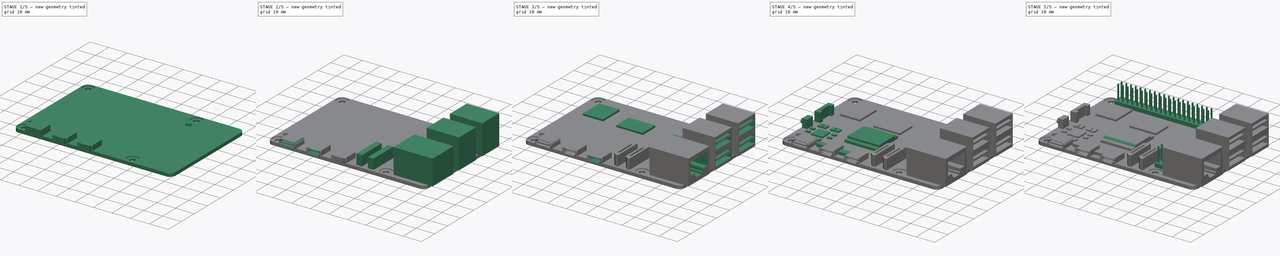
[diagram: build sequence overview — one tinted view per stage of 5, left to right]
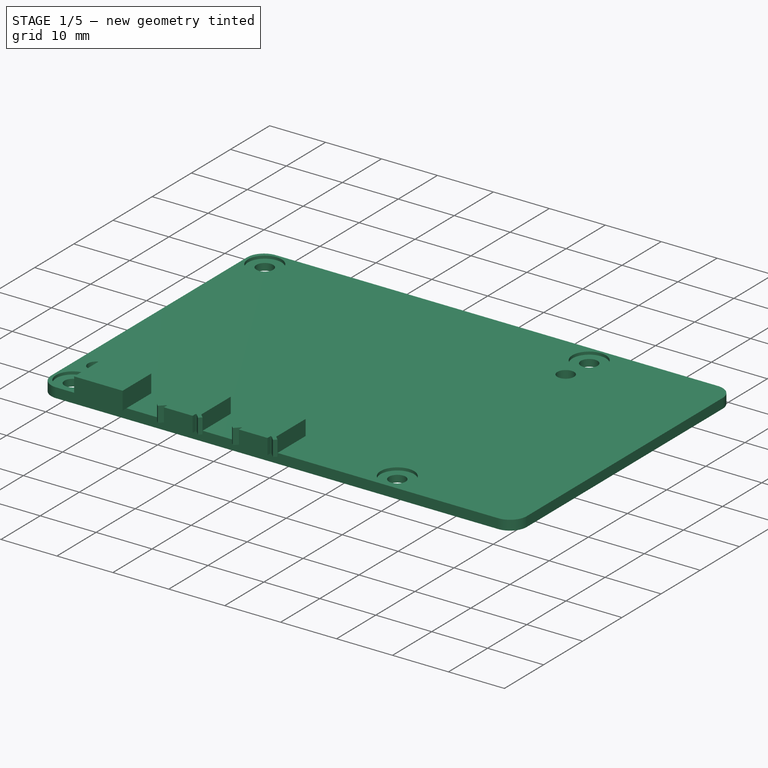
[diagram: stage 1 of 5 — iso view after this stage's code; geometry added in this stage tinted green]
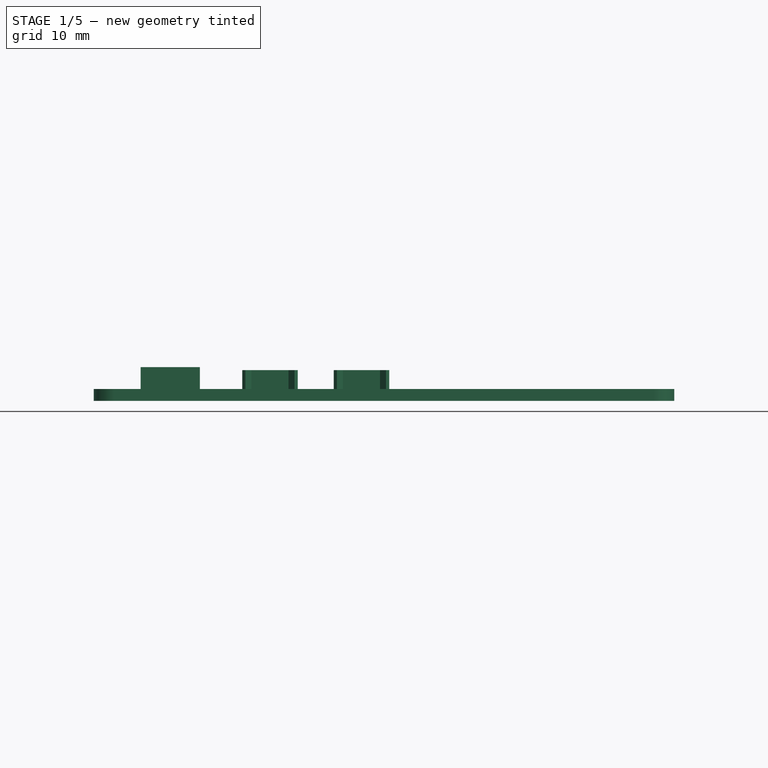
[diagram: stage 1 of 5 — front view after this stage's code; geometry added in this stage tinted green]
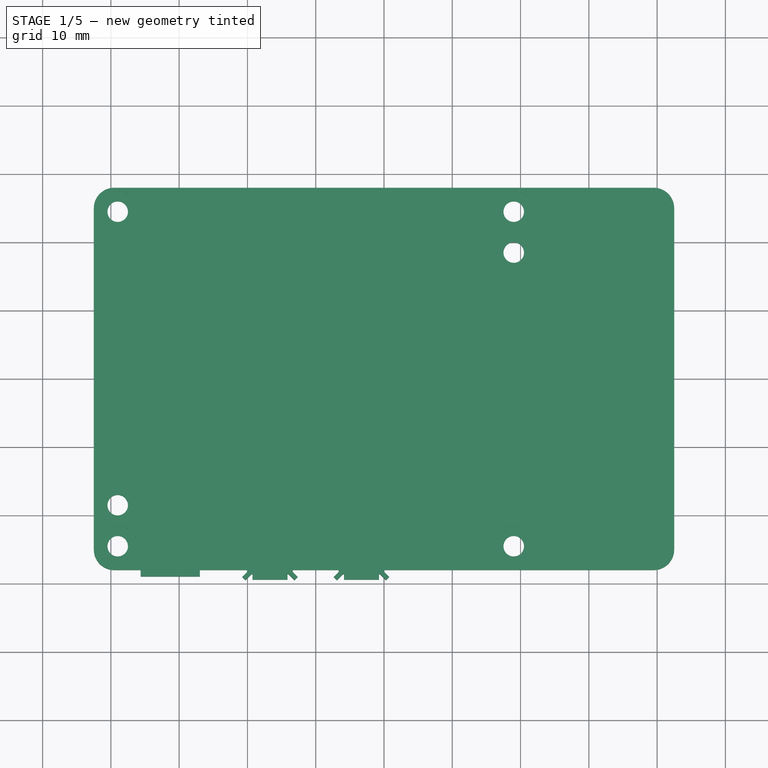
[diagram: stage 1 of 5 — top view after this stage's code; geometry added in this stage tinted green]
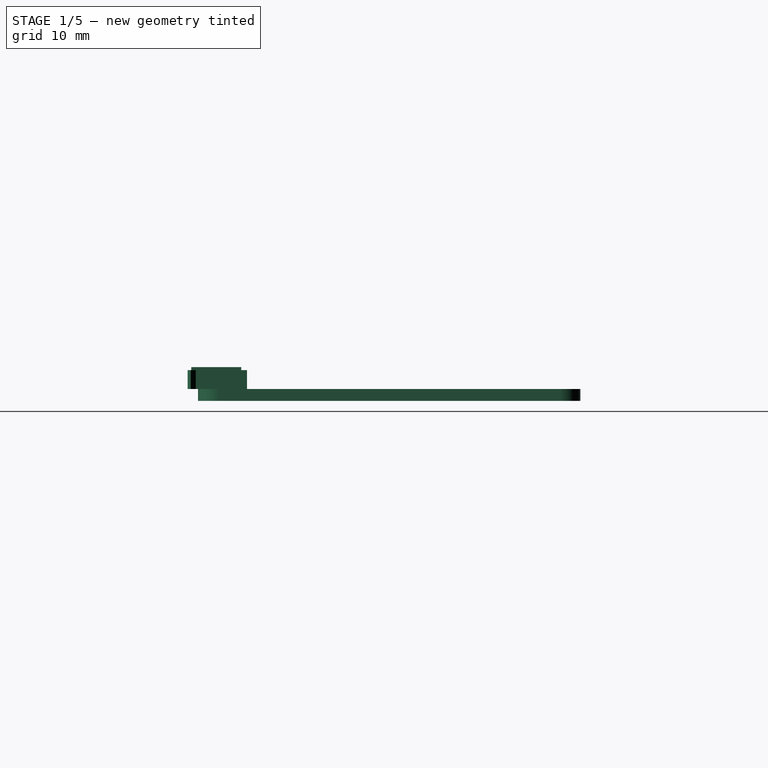
[diagram: stage 1 of 5 — right view after this stage's code; geometry added in this stage tinted green]
FCSTD DOCUMENT  (FreeCAD 1.0R39109 (Git))
Label: rpi5
License: All rights reserved
LicenseURL: http://en.wikipedia.org/wiki/All_rights_reserved
objects: Sketcher::SketchObject×28, PartDesign::Pad×18, PartDesign::Pocket×9, PartDesign::LinearPattern×3, Image::ImagePlane×1, PartDesign::Fillet×1, PartDesign::Chamfer×1, PartDesign::Body×1
note: 150 computed .brp shape members not serialized (recipe doc carries the construction recipe); baked Part::Feature solids carry a one-line shape summary decoded from their .brp

FEATURE [Sketcher::SketchObject] Sketch
  ArcFitTolerance = 1e-06
  AttachmentSupport = -> [XY_Plane]
  FullyConstrained = true
  MakeInternals = false
  MapMode = 5
  sketch-geometry (5):
    g0: LineSegment StartX=-42.5 StartY=28 StartZ=0 EndX=-42.5 EndY=-28 EndZ=0
    g1: LineSegment StartX=-42.5 StartY=-28 StartZ=0 EndX=42.5 EndY=-28 EndZ=0
    g2: LineSegment StartX=42.5 StartY=-28 StartZ=0 EndX=42.5 EndY=28 EndZ=0
    g3: LineSegment StartX=42.5 StartY=28 StartZ=0 EndX=-42.5 EndY=28 EndZ=0
    g4: GeomPoint [constr] X=0 Y=0 Z=0
  constraints (12):
    c: Coincident(g0,g1)
    c: Coincident(g1,g2)
    c: Coincident(g2,g3)
    c: Coincident(g3,g0)
    c: Vertical(g0)
    c: Vertical(g2)
    c: Horizontal(g1)
    c: Horizontal(g3)
    c: Symmetric(g2,g0,g4)
    c: Coincident(g4,g-1)
    c: DistanceX(g3,g3) = 85
    c: DistanceY(g2,g2) = 56
FEATURE [PartDesign::Pad] Pad  label="PCBPad"
  Direction = (0,0,1)
  Length = 1.75
  Length2 = 10
  Profile = -> Sketch
  ReferenceAxis = -> Sketch [N_Axis]
  Refine = true
  Suppressed = false
  Type = 0
FEATURE [Image::ImagePlane] rp5
  Placement = pos=(3,3,0) rot=(0,0,1;0rad)
  XSize = 132.42
  YSize = 98.1998
  expr: XSize = 228.31 * 0.58 mm
  expr: YSize = 169.31 * 0.58 mm
FEATURE [PartDesign::Fillet] Fillet  label="PCBFillet"
  Base = -> Pad [Edge2,Edge1,Edge8,Edge5]
  BaseFeature = -> Pad
  Radius = 3
  Refine = true
  SupportTransform = false
  Suppressed = false
  UseAllEdges = false
FEATURE [Sketcher::SketchObject] Sketch001
  ArcFitTolerance = 1e-06
  AttachmentSupport = -> [Fillet]
  ExternalGeometry = -> [Fillet]
  FullyConstrained = true
  MakeInternals = false
  MapMode = 5
  Placement = pos=(0,0,1.75) rot=(0,0,1;0rad)
  sketch-geometry (6):
    g0: Circle CenterX=-39 CenterY=-18.5 CenterZ=0 NormalX=0 NormalY=0 NormalZ=1 AngleXU=0 Radius=1.5
    g1: Circle CenterX=19 CenterY=-24.5 CenterZ=0 NormalX=0 NormalY=0 NormalZ=1 AngleXU=0 Radius=1.5
    g2: Circle CenterX=19 CenterY=24.5 CenterZ=0 NormalX=0 NormalY=0 NormalZ=1 AngleXU=0 Radius=1.5
    g3: Circle CenterX=19 CenterY=18.5 CenterZ=0 NormalX=0 NormalY=0 NormalZ=1 AngleXU=0 Radius=1.5
    g4: Circle CenterX=-39 CenterY=24.5 CenterZ=0 NormalX=0 NormalY=0 NormalZ=1 AngleXU=0 Radius=1.5
    g5: Circle CenterX=-39 CenterY=-24.5 CenterZ=0 NormalX=0 NormalY=0 NormalZ=1 AngleXU=0 Radius=1.5
  constraints (18):
    c: Equal(g3,g2)
    c: Equal(g2,g1)
    c: Equal(g5,g0)
    c: Equal(g0,g4)
    c: Equal(g5,g1)
    c: Radius(g0) = 1.5
    c: Vertical(g5,g0)
    c: Vertical(g0,g4)
    c: Vertical(g2,g3)
    c: Vertical(g3,g1)
    c: Horizontal(g1,g5)
    c: DistanceY(g5,g0) = 6
    c: DistanceY(g3,g2) = 6
    c: Horizontal(g4,g2)
    c: DistanceX(g4,g2) = 58
    c: DistanceX(g-5,g4) = 3.5
    c: DistanceY(g-7,g5) = 3.5
    c: DistanceY(g4,g-4) = 3.5
FEATURE [PartDesign::Pocket] Pocket  label="ScrewPocket"
  BaseFeature = -> Fillet
  Direction = (0,0,-1)
  Length = 5
  Length2 = 5
  Profile = -> Sketch001
  ReferenceAxis = -> Sketch001 [N_Axis]
  Refine = true
  Suppressed = false
  Type = 1
FEATURE [Sketcher::SketchObject] Sketch002
  ArcFitTolerance = 1e-06
  AttachmentSupport = -> [Pocket]
  ExternalGeometry = -> [Pocket]
  FullyConstrained = true
  MakeInternals = false
  MapMode = 5
  Placement = pos=(0,0,1.75) rot=(0,0,1;0rad)
  sketch-geometry (4):
    g0: Circle CenterX=19 CenterY=24.5 CenterZ=0 NormalX=0 NormalY=0 NormalZ=1 AngleXU=0 Radius=3
    g1: Circle CenterX=19 CenterY=-24.5 CenterZ=0 NormalX=0 NormalY=0 NormalZ=1 AngleXU=0 Radius=3
    g2: Circle CenterX=-39 CenterY=-24.5 CenterZ=0 NormalX=0 NormalY=0 NormalZ=1 AngleXU=0 Radius=3
    g3: Circle CenterX=-39 CenterY=24.5 CenterZ=0 NormalX=0 NormalY=0 NormalZ=1 AngleXU=0 Radius=3
  constraints (8):
    c: Coincident(g0,g-6)
    c: Coincident(g1,g-5)
    c: Coincident(g2,g-4)
    c: Coincident(g3,g-3)
    c: Radius(g3) = 3
    c: Equal(g3,g0)
    c: Equal(g2,g1)
    c: Equal(g2,g3)
FEATURE [PartDesign::Pocket] Pocket001  label="ScrewProPcoket"
  BaseFeature = -> Pocket
  Direction = (0,0,-1)
  Length = 0.5
  Length2 = 5
  Profile = -> Sketch002
  ReferenceAxis = -> Sketch002 [N_Axis]
  Refine = true
  Suppressed = false
  Type = 0
FEATURE [Sketcher::SketchObject] Sketch003
  ArcFitTolerance = 1e-06
  AttachmentSupport = -> [Pocket001]
  ExternalGeometry = -> [Pocket001]
  FullyConstrained = true
  MakeInternals = false
  MapMode = 5
  Placement = pos=(0,0,1.75) rot=(0,0,1;0rad)
  sketch-geometry (5):
    g0: LineSegment StartX=-35.635 StartY=-21.68 StartZ=0 EndX=-35.635 EndY=-28.99 EndZ=0
    g1: LineSegment StartX=-35.635 StartY=-28.99 StartZ=0 EndX=-26.965 EndY=-28.99 EndZ=0
    g2: LineSegment StartX=-26.965 StartY=-28.99 StartZ=0 EndX=-26.965 EndY=-21.68 EndZ=0
    g3: LineSegment StartX=-26.965 StartY=-21.68 StartZ=0 EndX=-35.635 EndY=-21.68 EndZ=0
    g4: GeomPoint X=-31.3 Y=-21.68 Z=0
  constraints (13):
    c: Coincident(g0,g1)
    c: Coincident(g1,g2)
    c: Coincident(g2,g3)
    c: Coincident(g3,g0)
    c: Vertical(g0)
    c: Vertical(g2)
    c: Horizontal(g1)
    c: Horizontal(g3)
    c: Symmetric(g3,g3,g4)
    c: DistanceX(g-3,g4) = 11.2
    c: DistanceX(g3,g3) = 8.67
    c: DistanceY(g2,g2) = 7.31
    c: DistanceY(g0,g-3) = 3.99
FEATURE [PartDesign::Pad] Pad001  label="USBCPad"
  BaseFeature = -> Pocket001
  Direction = (0,0,1)
  Length = 3.2
  Length2 = 10
  Profile = -> Sketch003
  ReferenceAxis = -> Sketch003 [N_Axis]
  Refine = true
  Suppressed = false
  Type = 0
FEATURE [Sketcher::SketchObject] Sketch004
  ArcFitTolerance = 1e-06
  AttachmentSupport = -> [Pad001]
  ExternalGeometry = -> [Pad001]
  FullyConstrained = true
  MakeInternals = false
  MapMode = 5
  Placement = pos=(0,0,1.75) rot=(0,0,1;0rad)
  sketch-geometry (32):
    g0: LineSegment StartX=-20.04 StartY=-20.82 StartZ=0 EndX=-20.04 EndY=-28.34 EndZ=0
    g1: LineSegment StartX=-20.04 StartY=-28.34 StartZ=0 EndX=-20.7633 EndY=-29.0633 EndZ=0
    g2: LineSegment StartX=-20.7633 StartY=-29.0633 StartZ=0 EndX=-20.2966 EndY=-29.53 EndZ=0
    g3: LineSegment StartX=-20.2966 StartY=-29.53 StartZ=0 EndX=-19.415 EndY=-28.6484 EndZ=0
    g4: LineSegment StartX=-19.415 StartY=-28.6484 StartZ=0 EndX=-19.265 EndY=-28.6484 EndZ=0
    g5: LineSegment StartX=-19.265 StartY=-28.6484 StartZ=0 EndX=-19.265 EndY=-29.4484 EndZ=0
    g6: LineSegment StartX=-19.265 StartY=-29.4484 StartZ=0 EndX=-14.135 EndY=-29.4484 EndZ=0
    g7: LineSegment StartX=-14.135 StartY=-29.4484 StartZ=0 EndX=-14.135 EndY=-28.6484 EndZ=0
    g8: LineSegment StartX=-14.135 StartY=-28.6484 StartZ=0 EndX=-13.985 EndY=-28.6484 EndZ=0
    g9: LineSegment StartX=-13.985 StartY=-28.6484 StartZ=0 EndX=-13.1034 EndY=-29.53 EndZ=0
    g10: LineSegment StartX=-13.1034 StartY=-29.53 StartZ=0 EndX=-12.6367 EndY=-29.0633 EndZ=0
    g11: LineSegment StartX=-12.6367 StartY=-29.0633 StartZ=0 EndX=-13.36 EndY=-28.34 EndZ=0
    g12: LineSegment StartX=-13.36 StartY=-28.34 StartZ=0 EndX=-13.36 EndY=-20.82 EndZ=0
    g13: LineSegment StartX=-13.36 StartY=-20.82 StartZ=0 EndX=-20.04 EndY=-20.82 EndZ=0
    g14: LineSegment StartX=-6.64 StartY=-20.82 StartZ=0 EndX=-6.64 EndY=-28.34 EndZ=0
    g15: LineSegment StartX=-6.64 StartY=-28.34 StartZ=0 EndX=-7.36331 EndY=-29.0633 EndZ=0
    g16: LineSegment StartX=-7.36331 StartY=-29.0633 StartZ=0 EndX=-6.89662 EndY=-29.53 EndZ=0
    g17: LineSegment StartX=-6.89662 StartY=-29.53 StartZ=0 EndX=-6.015 EndY=-28.6484 EndZ=0
    g18: LineSegment StartX=-5.865 StartY=-29.4484 StartZ=0 EndX=-0.735 EndY=-29.4484 EndZ=0
    g19: LineSegment StartX=-0.735 StartY=-29.4484 StartZ=0 EndX=-0.735 EndY=-28.6484 EndZ=0
    g20: LineSegment StartX=-0.735 StartY=-28.6484 StartZ=0 EndX=-0.585 EndY=-28.6484 EndZ=0
    g21: LineSegment StartX=-6.015 StartY=-28.6484 StartZ=0 EndX=-5.865 EndY=-28.6484 EndZ=0
    g22: LineSegment StartX=-5.865 StartY=-28.6484 StartZ=0 EndX=-5.865 EndY=-29.4484 EndZ=0
    g23: LineSegment StartX=-0.585 StartY=-28.6484 StartZ=0 EndX=0.296619 EndY=-29.53 EndZ=0
    g24: LineSegment StartX=0.296619 StartY=-29.53 StartZ=0 EndX=0.76331 EndY=-29.0633 EndZ=0
    g25: LineSegment StartX=0.76331 StartY=-29.0633 StartZ=0 EndX=0.04 EndY=-28.34 EndZ=0
    g26: LineSegment StartX=0.04 StartY=-28.34 StartZ=0 EndX=0.04 EndY=-20.82 EndZ=0
    g27: LineSegment StartX=0.04 StartY=-20.82 StartZ=0 EndX=-6.64 EndY=-20.82 EndZ=0
    g28: GeomPoint X=-16.7 Y=-20.82 Z=0
    g29: GeomPoint X=-3.3 Y=-20.82 Z=0
    g30: GeomPoint X=-16.7 Y=-29.4484 Z=0
    g31: GeomPoint X=-3.3 Y=-29.4484 Z=0
  constraints (88):
    c: Vertical(g0)
    c: Coincident(g0,g1)
    c: Coincident(g1,g2)
    c: Coincident(g2,g3)
    c: Coincident(g3,g4)
    c: Coincident(g4,g5)
    c: Vertical(g5)
    c: Coincident(g5,g6)
    c: Horizontal(g6)
    c: Coincident(g6,g7)
    c: Vertical(g7)
    c: Coincident(g7,g8)
    c: Horizontal(g8)
    c: Coincident(g8,g9)
    c: Coincident(g9,g10)
    c: Coincident(g10,g11)
    c: Coincident(g11,g12)
    c: Vertical(g12)
    c: Coincident(g12,g13)
    c: Coincident(g13,g0)
    c: Horizontal(g13)
    c: Vertical(g14)
    c: Coincident(g14,g15)
    c: Coincident(g15,g16)
    c: Coincident(g16,g17)
    c: Horizontal(g18)
    c: Coincident(g18,g19)
    c: Coincident(g19,g20)
    c: Coincident(g17,g21)
    c: Coincident(g21,g22)
    c: Coincident(g22,g18)
    c: Coincident(g20,g23)
    c: Coincident(g23,g24)
    c: Coincident(g24,g25)
    c: Coincident(g25,g26)
    c: Vertical(g26)
    c: Coincident(g27,g26)
    c: Coincident(g27,g14)
    c: Horizontal(g27)
    c: Symmetric(g13,g13,g28)
    c: Symmetric(g27,g27,g29)
    c: DistanceX(g-3,g29) = 39.2
    c: DistanceX(g-3,g28) = 25.8
    c: Horizontal(g6,g18)
    c: Equal(g16,g10)
    c: Equal(g10,g2)
    c: Equal(g16,g24)
    c: Equal(g15,g25)
    c: Equal(g11,g1)
    c: Equal(g13,g27)
    c: Equal(g12,g14)
    c: Horizontal(g14,g12)
    c: Horizontal(g0,g11)
    c: Horizontal(g14,g25)
    c: Horizontal(g21)
    c: Horizontal(g20)
    c: Horizontal(g4)
    c: DistanceX(g13,g13) = 6.68
    c: DistanceY(g12,g12) = 7.52
    c: Symmetric(g6,g6,g30)
    c: Vertical(g30,g28)
    c: Symmetric(g18,g18,g31)
    c: Vertical(g31,g29)
    c: Equal(g8,g4)
    c: DistanceX(g6,g6) = 5.13
    c: Equal(g6,g18)
    c: Vertical(g22)
    c: Vertical(g19)
    c: Equal(g20,g21)
    c: Equal(g21,g8)
    c: Horizontal(g8,g17)
    c: Horizontal(g21,g20)
    c: Horizontal(g3,g7)
    c: Perpendicular(g1,g2)
    c: Perpendicular(g2,g3)
    c: Perpendicular(g11,g10)
    c: Perpendicular(g10,g9)
    c: Perpendicular(g16,g15)
    c: Perpendicular(g16,g17)
    c: Perpendicular(g24,g23)
    c: Perpendicular(g24,g25)
    c: DistanceX(g20,g20) = 0.15
    c: DistanceY(g-3,g0) = 4.18
    c: DistanceY(g2,g0) = 1.19
    c: Angle(g3,g4) = 2.35619
    c: Distance(g2) = 0.66
    c: DistanceY(g7,g7) = 0.8
    c: Horizontal(g16,g9)
FEATURE [PartDesign::Pad] Pad002  label="MicroHDMIPad"
  BaseFeature = -> Pad001
  Direction = (0,0,1)
  Length = 2.76
  Length2 = 10
  Profile = -> Sketch004
  ReferenceAxis = -> Sketch004 [N_Axis]
  Refine = true
  Suppressed = false
  Type = 0
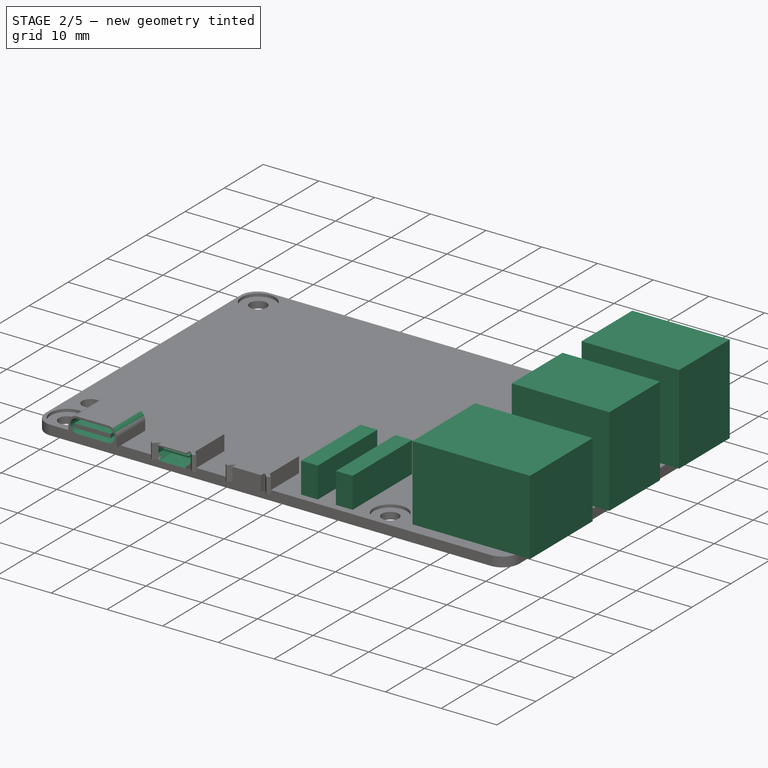
[diagram: stage 2 of 5 — iso view after this stage's code; geometry added in this stage tinted green]
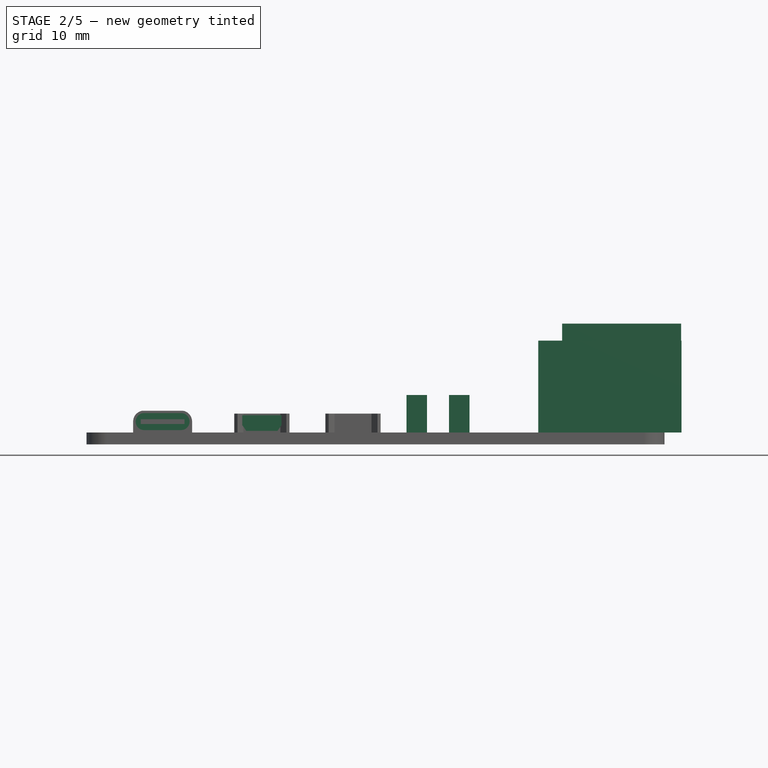
[diagram: stage 2 of 5 — front view after this stage's code; geometry added in this stage tinted green]
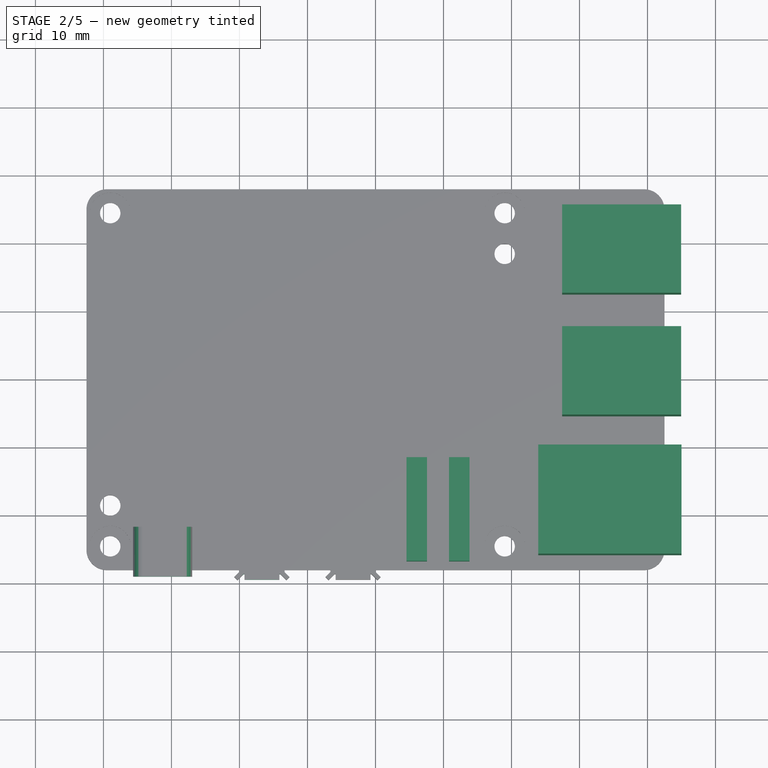
[diagram: stage 2 of 5 — top view after this stage's code; geometry added in this stage tinted green]
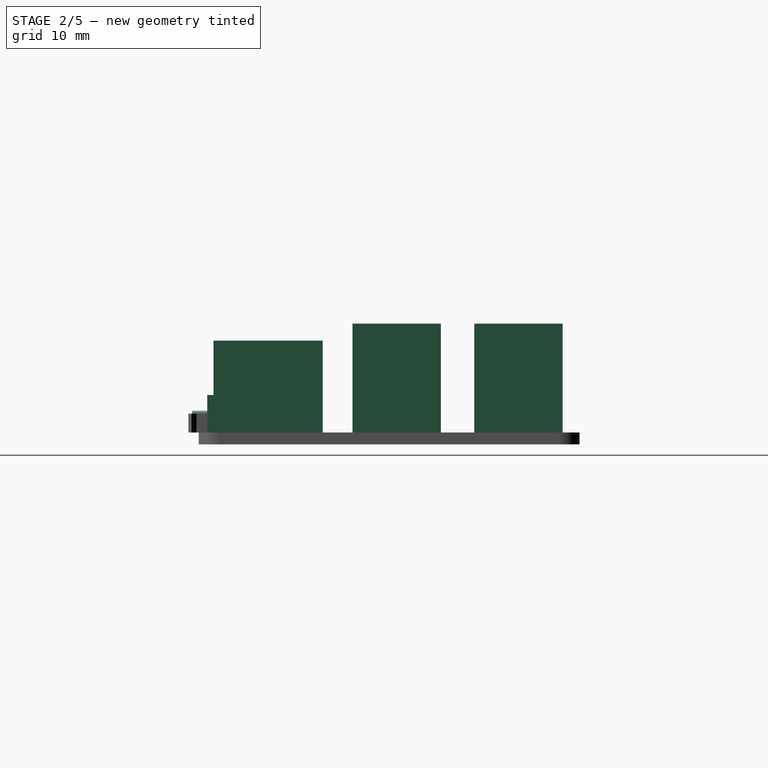
[diagram: stage 2 of 5 — right view after this stage's code; geometry added in this stage tinted green]
FEATURE [Sketcher::SketchObject] Sketch005
  ArcFitTolerance = 1e-06
  AttachmentSupport = -> [Pad002]
  ExternalGeometry = -> [Pad002]
  FullyConstrained = true
  MakeInternals = false
  MapMode = 5
  Placement = pos=(0,0,1.75) rot=(0,0,1;0rad)
  sketch-geometry (8):
    g0: LineSegment StartX=4.57 StartY=-11.5 StartZ=0 EndX=4.57 EndY=-26.75 EndZ=0
    g1: LineSegment StartX=4.57 StartY=-26.75 StartZ=0 EndX=7.57 EndY=-26.75 EndZ=0
    g2: LineSegment StartX=7.57 StartY=-26.75 StartZ=0 EndX=7.57 EndY=-11.5 EndZ=0
    g3: LineSegment StartX=7.57 StartY=-11.5 StartZ=0 EndX=4.57 EndY=-11.5 EndZ=0
    g4: LineSegment StartX=10.82 StartY=-11.5 StartZ=0 EndX=10.82 EndY=-26.75 EndZ=0
    g5: LineSegment StartX=10.82 StartY=-26.75 StartZ=0 EndX=13.82 EndY=-26.75 EndZ=0
    g6: LineSegment StartX=13.82 StartY=-26.75 StartZ=0 EndX=13.82 EndY=-11.5 EndZ=0
    g7: LineSegment StartX=13.82 StartY=-11.5 StartZ=0 EndX=10.82 EndY=-11.5 EndZ=0
  constraints (24):
    c: Coincident(g0,g1)
    c: Coincident(g1,g2)
    c: Coincident(g2,g3)
    c: Coincident(g3,g0)
    c: Vertical(g0)
    c: Vertical(g2)
    c: Horizontal(g1)
    c: Horizontal(g3)
    c: Coincident(g4,g5)
    c: Coincident(g5,g6)
    c: Coincident(g6,g7)
    c: Coincident(g7,g4)
    c: Vertical(g4)
    c: Vertical(g6)
    c: Horizontal(g5)
    c: Horizontal(g7)
    c: Horizontal(g1,g4)
    c: Horizontal(g2,g4)
    c: Equal(g3,g7)
    c: DistanceY(g6,g6) = 15.25
    c: DistanceX(g1,g4) = 3.25
    c: DistanceY(g0) = -11.5
    c: DistanceX(g0) = 4.57
    c: DistanceX(g7,g7) = 3
FEATURE [PartDesign::Pad] Pad003  label="RibbonPortsPad"
  BaseFeature = -> Pad002
  Direction = (0,0,1)
  Length = 5.5
  Length2 = 10
  Profile = -> Sketch005
  ReferenceAxis = -> Sketch005 [N_Axis]
  Refine = true
  Suppressed = false
  Type = 0
FEATURE [Sketcher::SketchObject] Sketch006
  ArcFitTolerance = 1e-06
  AttachmentSupport = -> [Pad003]
  ExternalGeometry = -> [Pad003]
  FullyConstrained = false
  MakeInternals = false
  MapMode = 5
  Placement = pos=(0,0,1.75) rot=(0,0,1;0rad)
  sketch-geometry (5):
    g0: LineSegment StartX=23.9287 StartY=-9.77 StartZ=0 EndX=23.9287 EndY=-25.83 EndZ=0
    g1: LineSegment StartX=23.9287 StartY=-25.83 StartZ=0 EndX=45.0087 EndY=-25.83 EndZ=0
    g2: LineSegment StartX=45.0087 StartY=-25.83 StartZ=0 EndX=45.0087 EndY=-9.77 EndZ=0
    g3: LineSegment StartX=45.0087 StartY=-9.77 StartZ=0 EndX=23.9287 EndY=-9.77 EndZ=0
    g4: GeomPoint X=45.0087 Y=-17.8 Z=0
  constraints (12):
    c: Coincident(g0,g1)
    c: Coincident(g1,g2)
    c: Coincident(g2,g3)
    c: Coincident(g3,g0)
    c: Vertical(g0)
    c: Vertical(g2)
    c: Horizontal(g1)
    c: Horizontal(g3)
    c: Symmetric(g2,g2,g4)
    c: DistanceY(g-5,g4) = 10.2
    c: DistanceY(g2,g2) = 16.06
    c: DistanceX(g3,g3) = 21.08
FEATURE [PartDesign::Pad] Pad004  label="EthernetPad"
  BaseFeature = -> Pad003
  Direction = (0,0,1)
  Length = 13.5
  Length2 = 10
  Profile = -> Sketch006
  ReferenceAxis = -> Sketch006 [N_Axis]
  Refine = true
  Suppressed = false
  Type = 0
FEATURE [Sketcher::SketchObject] Sketch007
  ArcFitTolerance = 1e-06
  AttachmentSupport = -> [Pad004]
  ExternalGeometry = -> [Pad004]
  FullyConstrained = true
  MakeInternals = false
  MapMode = 5
  Placement = pos=(0,0,1.75) rot=(0,0,1;0rad)
  sketch-geometry (10):
    g0: LineSegment StartX=27.44 StartY=7.6 StartZ=0 EndX=27.44 EndY=-5.4 EndZ=0
    g1: LineSegment StartX=27.44 StartY=-5.4 StartZ=0 EndX=44.94 EndY=-5.4 EndZ=0
    g2: LineSegment StartX=44.94 StartY=-5.4 StartZ=0 EndX=44.94 EndY=7.6 EndZ=0
    g3: LineSegment StartX=44.94 StartY=7.6 StartZ=0 EndX=27.44 EndY=7.6 EndZ=0
    g4: LineSegment StartX=27.44 StartY=25.5 StartZ=0 EndX=27.44 EndY=12.5 EndZ=0
    g5: LineSegment StartX=27.44 StartY=12.5 StartZ=0 EndX=44.94 EndY=12.5 EndZ=0
    g6: LineSegment StartX=44.94 StartY=12.5 StartZ=0 EndX=44.94 EndY=25.5 EndZ=0
    g7: LineSegment StartX=44.94 StartY=25.5 StartZ=0 EndX=27.44 EndY=25.5 EndZ=0
    g8: GeomPoint X=44.94 Y=1.1 Z=0
    g9: GeomPoint X=44.94 Y=19 Z=0
  constraints (26):
    c: Coincident(g0,g1)
    c: Coincident(g1,g2)
    c: Coincident(g2,g3)
    c: Coincident(g3,g0)
    c: Vertical(g0)
    c: Vertical(g2)
    c: Horizontal(g1)
    c: Horizontal(g3)
    c: Coincident(g4,g5)
    c: Coincident(g5,g6)
    c: Coincident(g6,g7)
    c: Coincident(g7,g4)
    c: Vertical(g4)
    c: Vertical(g6)
    c: Horizontal(g5)
    c: Horizontal(g7)
    c: Equal(g2,g6)
    c: Equal(g7,g3)
    c: Vertical(g0,g4)
    c: Symmetric(g6,g6,g9)
    c: Symmetric(g1,g2,g8)
    c: DistanceY(g-4,g8) = 29.1
    c: DistanceY(g-4,g9) = 47
    c: DistanceY(g6,g6) = 13
    c: DistanceX(g3,g3) = 17.5
    c: DistanceX(g4) = 27.44
FEATURE [PartDesign::Pad] Pad005  label="USBPortsPad"
  BaseFeature = -> Pad004
  Direction = (0,0,1)
  Length = 16
  Length2 = 10
  Profile = -> Sketch007
  ReferenceAxis = -> Sketch007 [N_Axis]
  Refine = true
  Suppressed = false
  Type = 0
FEATURE [Sketcher::SketchObject] Sketch008
  ArcFitTolerance = 1e-06
  AttachmentSupport = -> [Pad005]
  ExternalGeometry = -> [Pad005]
  FullyConstrained = true
  MakeInternals = false
  MapMode = 5
  Placement = pos=(0,-28.99,0) rot=(1,0,0;1.5708rad)
  sketch-geometry (15):
    g0: LineSegment StartX=-34.515 StartY=3.7 StartZ=0 EndX=-34.515 EndY=3 EndZ=0
    g1: LineSegment StartX=-34.515 StartY=3 StartZ=0 EndX=-28.085 EndY=3 EndZ=0
    g2: LineSegment StartX=-28.085 StartY=3 StartZ=0 EndX=-28.085 EndY=3.7 EndZ=0
    g3: LineSegment StartX=-28.085 StartY=3.7 StartZ=0 EndX=-34.515 EndY=3.7 EndZ=0
    g4: ArcOfCircle CenterX=-34.015 CenterY=3.35 CenterZ=0 NormalX=0 NormalY=0 NormalZ=1 AngleXU=0 Radius=1.25 StartAngle=1.5708 EndAngle=4.71239
    g5: ArcOfCircle CenterX=-28.585 CenterY=3.35 CenterZ=0 NormalX=0 NormalY=0 NormalZ=1 AngleXU=0 Radius=1.25 StartAngle=4.71239 EndAngle=7.85398
    g6: LineSegment StartX=-34.015 StartY=4.6 StartZ=0 EndX=-28.585 EndY=4.6 EndZ=0
    g7: LineSegment StartX=-34.015 StartY=2.1 StartZ=0 EndX=-28.585 EndY=2.1 EndZ=0
    g8: GeomPoint X=-31.3 Y=4.95 Z=0
    g9: LineSegment [constr] StartX=-28.585 StartY=3.35 StartZ=0 EndX=-34.015 EndY=3.35 EndZ=0
    g10: GeomPoint [constr] X=-31.3 Y=3.35 Z=0
    g11: GeomPoint [constr] X=-31.3 Y=4.6 Z=0
    g12: GeomPoint [constr] X=-26.965 Y=3.35 Z=0
    g13: GeomPoint [constr] X=-28.085 Y=3.35 Z=0
    g14: GeomPoint [constr] X=-31.3 Y=3.7 Z=0
  constraints (30):
    c: Coincident(g0,g1)
    c: Coincident(g1,g2)
    c: Coincident(g2,g3)
    c: Coincident(g3,g0)
    c: Vertical(g0)
    c: Vertical(g2)
    c: Horizontal(g1)
    c: Horizontal(g3)
    c: Tangent(g4,g6) = 1.5708
    c: Tangent(g4,g7) = -1.5708
    c: Tangent(g5,g6) = 1.5708
    c: Tangent(g5,g7) = -1.5708
    c: Equal(g4,g5)
    c: Horizontal(g6)
    c: Symmetric(g-3,g-3,g8)
    c: Coincident(g9,g5)
    c: Coincident(g9,g4)
    c: Symmetric(g9,g9,g10)
    c: Symmetric(g6,g6,g11)
    c: Vertical(g11,g8)
    c: DistanceY(g2,g2) = 0.7
    c: DistanceX(g3,g3) = 6.43
    c: DistanceX(g6,g6) = 5.43
    c: DistanceY(g5,g5) = 2.5
    c: Symmetric(g-4,g-4,g12)
    c: Horizontal(g12,g5)
    c: Horizontal(g5,g13)
    c: Symmetric(g2,g1,g13)
    c: Symmetric(g3,g3,g14)
    c: Vertical(g14,g11)
FEATURE [PartDesign::Pocket] Pocket002  label="USBCPocket"
  BaseFeature = -> Pad005
  Direction = (0,1,-2e-16)
  Length = 6
  Length2 = 5
  Profile = -> Sketch008
  ReferenceAxis = -> Sketch008 [N_Axis]
  Refine = true
  Suppressed = false
  Type = 0
FEATURE [Sketcher::SketchObject] Sketch009
  ArcFitTolerance = 1e-06
  AttachmentSupport = -> [Pocket002]
  ExternalGeometry = -> [Pocket002]
  FullyConstrained = true
  MakeInternals = false
  MapMode = 5
  Placement = pos=(0,-28.99,0) rot=(1,0,0;1.5708rad)
  sketch-geometry (10):
    g0: LineSegment StartX=-35.635 StartY=1.75 StartZ=0 EndX=-35.635 EndY=3.35 EndZ=0
    g1: LineSegment StartX=-26.965 StartY=3.35 StartZ=0 EndX=-26.965 EndY=1.75 EndZ=0
    g2: ArcOfCircle CenterX=-34.015 CenterY=3.35 CenterZ=0 NormalX=0 NormalY=0 NormalZ=1 AngleXU=0 Radius=1.62 StartAngle=1.5708 EndAngle=3.14159
    g3: LineSegment StartX=-34.015 StartY=4.97 StartZ=0 EndX=-28.585 EndY=4.97 EndZ=0
    g4: ArcOfCircle CenterX=-28.585 CenterY=3.35 CenterZ=0 NormalX=0 NormalY=0 NormalZ=1 AngleXU=0 Radius=1.62 StartAngle=0 EndAngle=1.5708
    g5: LineSegment StartX=-35.635 StartY=1.75 StartZ=0 EndX=-35.885 EndY=1.75 EndZ=0
    g6: LineSegment StartX=-35.885 StartY=1.75 StartZ=0 EndX=-35.885 EndY=5.2 EndZ=0
    g7: LineSegment StartX=-35.885 StartY=5.2 StartZ=0 EndX=-26.715 EndY=5.2 EndZ=0
    g8: LineSegment StartX=-26.715 StartY=5.2 StartZ=0 EndX=-26.715 EndY=1.75 EndZ=0
    g9: LineSegment StartX=-26.715 StartY=1.75 StartZ=0 EndX=-26.965 EndY=1.75 EndZ=0
  constraints (29):
    c: Vertical(g0)
    c: Horizontal(g0,g-3)
    c: Vertical(g1)
    c: Horizontal(g1,g0)
    c: PointOnObject(g1,g-3)
    c: Vertical(g-6,g0)
    c: Horizontal(g0,g-5)
    c: Horizontal(g1,g-5)
    c: Coincident(g2,g0)
    c: Coincident(g4,g3)
    c: Coincident(g4,g1)
    c: Coincident(g4,g-4)
    c: Coincident(g2,g-5)
    c: Tangent(g3,g2) = 1.5708
    c: Horizontal(g3)
    c: Coincident(g0,g5)
    c: Coincident(g5,g6)
    c: Coincident(g6,g7)
    c: Horizontal(g7)
    c: Coincident(g7,g8)
    c: Vertical(g8)
    c: Coincident(g8,g9)
    c: Coincident(g9,g1)
    c: Horizontal(g9)
    c: Equal(g9,g5)
    c: Horizontal(g5)
    c: Vertical(g6)
    c: DistanceX(g5,g5) = 0.25
    c: DistanceY(g-6,g7) = 0.25
FEATURE [PartDesign::Pocket] Pocket003  label="USBC2Pocket"
  BaseFeature = -> Pocket002
  Direction = (0,1,-2e-16)
  Length = 5
  Length2 = 5
  Profile = -> Sketch009
  ReferenceAxis = -> Sketch009 [N_Axis]
  Refine = true
  Suppressed = false
  Type = 1
FEATURE [Sketcher::SketchObject] Sketch010
  ArcFitTolerance = 1e-06
  AttachmentSupport = -> [Pocket003]
  ExternalGeometry = -> [Pocket003]
  FullyConstrained = true
  MakeInternals = false
  MapMode = 5
  Placement = pos=(0,-29.4484,0) rot=(1,0,0;1.5708rad)
  sketch-geometry (18):
    g0: LineSegment StartX=-19.59 StartY=4.28 StartZ=0 EndX=-13.81 EndY=4.28 EndZ=0
    g1: LineSegment StartX=-13.81 StartY=4.28 StartZ=0 EndX=-13.81 EndY=2.83689 EndZ=0
    g2: LineSegment StartX=-13.81 StartY=2.83689 StartZ=0 EndX=-14.41 EndY=1.98 EndZ=0
    g3: LineSegment StartX=-14.41 StartY=1.98 StartZ=0 EndX=-18.99 EndY=1.98 EndZ=0
    g4: LineSegment StartX=-18.99 StartY=1.98 StartZ=0 EndX=-19.59 EndY=2.83689 EndZ=0
    g5: LineSegment StartX=-19.59 StartY=2.83689 StartZ=0 EndX=-19.59 EndY=4.28 EndZ=0
    g6: LineSegment StartX=-18.99 StartY=3.55844 StartZ=0 EndX=-18.99 EndY=3.25844 EndZ=0
    g7: LineSegment StartX=-18.99 StartY=3.25844 StartZ=0 EndX=-14.41 EndY=3.25844 EndZ=0
    g8: LineSegment StartX=-14.41 StartY=3.25844 StartZ=0 EndX=-14.41 EndY=3.55844 EndZ=0
    g9: LineSegment StartX=-14.41 StartY=3.55844 StartZ=0 EndX=-18.99 EndY=3.55844 EndZ=0
    g10: GeomPoint X=-13.81 Y=3.55844 Z=0
    g11: GeomPoint X=-16.7 Y=3.55844 Z=0
    g12: GeomPoint X=-16.7 Y=4.28 Z=0
    g13: GeomPoint X=-16.7 Y=1.98 Z=0
    g14: GeomPoint X=-16.7 Y=4.51 Z=0
    g15: LineSegment [constr] StartX=-16.7 StartY=4.28 StartZ=0 EndX=-16.7 EndY=1.98 EndZ=0
    g16: GeomPoint [constr] X=-16.7 Y=3.13 Z=0
    g17: GeomPoint [constr] X=-14.135 Y=3.13 Z=0
  constraints (39):
    c: Horizontal(g0)
    c: Coincident(g0,g1)
    c: Vertical(g1)
    c: Coincident(g1,g2)
    c: Coincident(g2,g3)
    c: Horizontal(g3)
    c: Coincident(g3,g4)
    c: Coincident(g4,g5)
    c: Coincident(g5,g0)
    c: Vertical(g5)
    c: Coincident(g6,g7)
    c: Coincident(g7,g8)
    c: Coincident(g8,g9)
    c: Coincident(g9,g6)
    c: Vertical(g6)
    c: Vertical(g8)
    c: Horizontal(g7)
    c: Horizontal(g9)
    c: Symmetric(g1,g1,g10)
    c: Horizontal(g8,g10)
    c: Symmetric(g9,g9,g11)
    c: Symmetric(g0,g0,g12)
    c: Vertical(g11,g12)
    c: Symmetric(g3,g3,g13)
    c: Vertical(g13,g11)
    c: Equal(g2,g4)
    c: DistanceX(g9,g9) = 4.58
    c: DistanceX(g0,g0) = 5.78
    c: Equal(g7,g3)
    c: Symmetric(g-3,g-3,g14)
    c: Vertical(g12,g14)
    c: Coincident(g15,g12)
    c: Coincident(g15,g13)
    c: Symmetric(g15,g15,g16)
    c: Symmetric(g-4,g-4,g17)
    c: Horizontal(g17,g16)
    c: DistanceY(g8,g8) = 0.3
    c: Angle(g2,g3) = 2.18166
    c: DistanceY(g15,g15) = 2.3
FEATURE [PartDesign::Pocket] Pocket004  label="MicroHDMIPocket"
  BaseFeature = -> Pocket003
  Direction = (0,1,-2e-16)
  Length = 7
  Length2 = 5
  Profile = -> Sketch010
  ReferenceAxis = -> Sketch010 [N_Axis]
  Refine = true
  Suppressed = false
  Type = 0
FEATURE [Sketcher::SketchObject] Sketch011
  ArcFitTolerance = 1e-06
  AttachmentSupport = -> [Pocket004]
  ExternalGeometry = -> [Pocket004]
  FullyConstrained = true
  MakeInternals = false
  MapMode = 5
  Placement = pos=(0,-29.4484,0) rot=(1,0,0;1.5708rad)
  sketch-geometry (4):
    g0: LineSegment StartX=-18.99 StartY=3.55844 StartZ=0 EndX=-18.99 EndY=3.25844 EndZ=0
    g1: LineSegment StartX=-18.99 StartY=3.25844 StartZ=0 EndX=-14.41 EndY=3.25844 EndZ=0
    g2: LineSegment StartX=-14.41 StartY=3.25844 StartZ=0 EndX=-14.41 EndY=3.55844 EndZ=0
    g3: LineSegment StartX=-14.41 StartY=3.55844 StartZ=0 EndX=-18.99 EndY=3.55844 EndZ=0
  constraints (10):
    c: Coincident(g0,g1)
    c: Coincident(g1,g2)
    c: Coincident(g2,g3)
    c: Coincident(g3,g0)
    c: Vertical(g0)
    c: Vertical(g2)
    c: Horizontal(g1)
    c: Horizontal(g3)
    c: Coincident(g0,g-3)
    c: Coincident(g1,g-4)
FEATURE [PartDesign::Pocket] Pocket005  label="MicroHDMI2Pocket"
  BaseFeature = -> Pocket004
  Direction = (0,1,-2e-16)
  Length = 1
  Length2 = 5
  Profile = -> Sketch011
  ReferenceAxis = -> Sketch011 [N_Axis]
  Refine = true
  Suppressed = false
  Type = 0
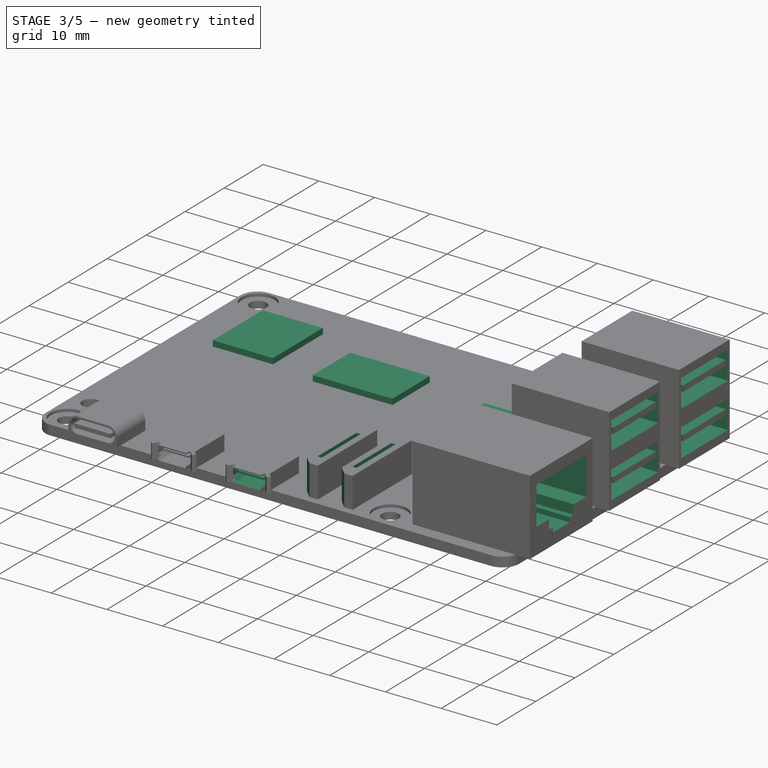
[diagram: stage 3 of 5 — iso view after this stage's code; geometry added in this stage tinted green]
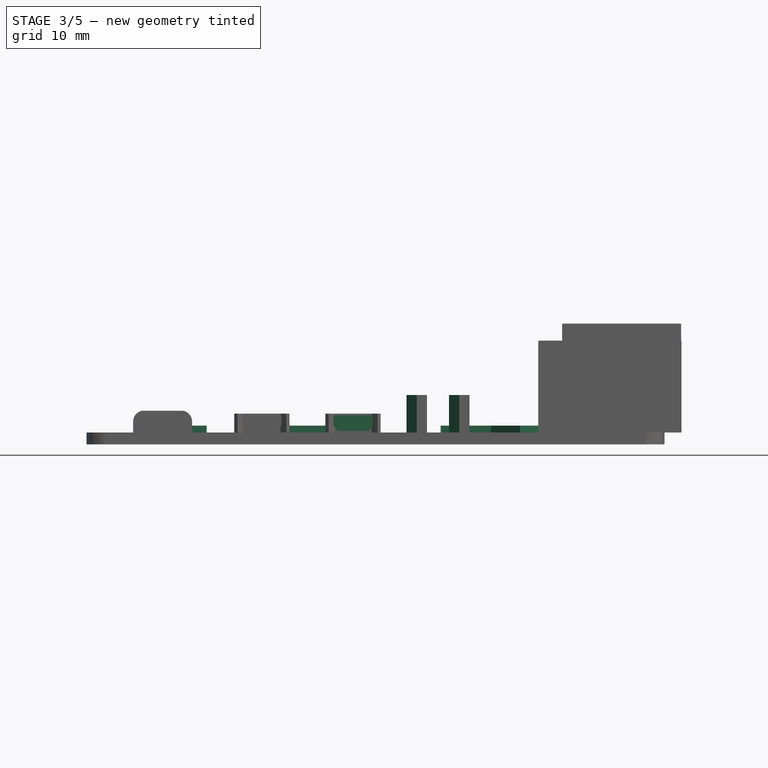
[diagram: stage 3 of 5 — front view after this stage's code; geometry added in this stage tinted green]
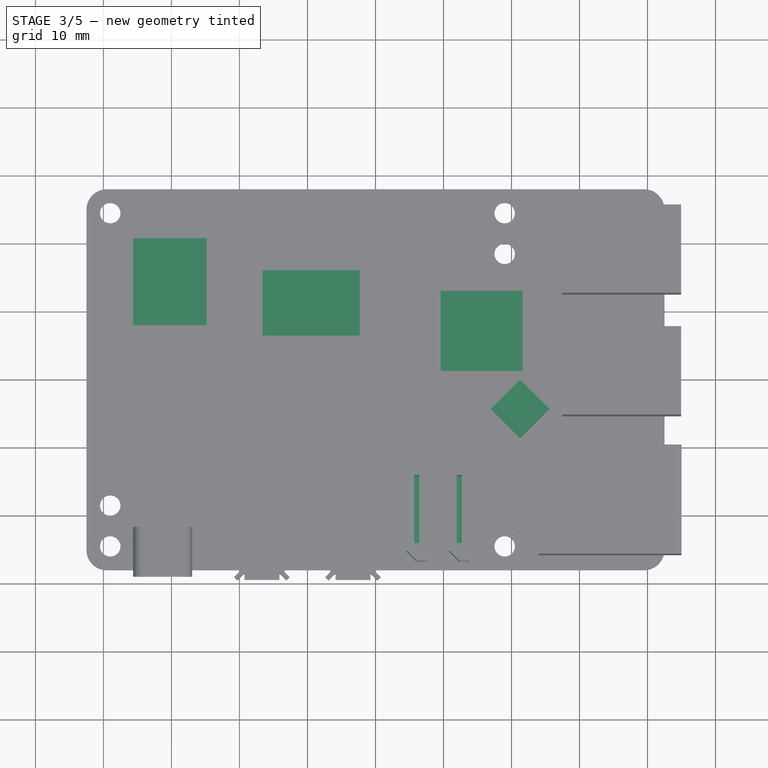
[diagram: stage 3 of 5 — top view after this stage's code; geometry added in this stage tinted green]
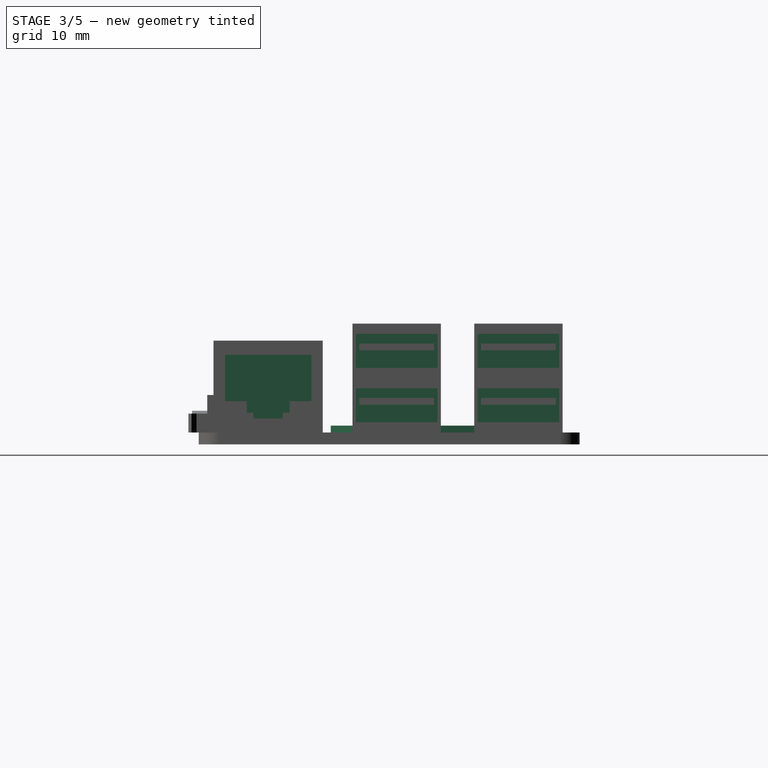
[diagram: stage 3 of 5 — right view after this stage's code; geometry added in this stage tinted green]
FEATURE [PartDesign::LinearPattern] LinearPattern  label="MicroHDMIPattern"
  BaseFeature = -> Pocket005
  Direction = -> X_Axis
  Length = 13.4
  Mode = 0
  Occurrences = 2
  Offset = 13.4
  Originals = -> [Pocket004,Pocket005]
  Refine = true
  Suppressed = false
  TransformMode = 0
FEATURE [Sketcher::SketchObject] Sketch012
  ArcFitTolerance = 1e-06
  AttachmentSupport = -> [LinearPattern]
  ExternalGeometry = -> [LinearPattern]
  FullyConstrained = true
  MakeInternals = false
  MapMode = 5
  Placement = pos=(0,0,7.25) rot=(0,0,1;0rad)
  sketch-geometry (13):
    g0: LineSegment StartX=4.57 StartY=-26.75 StartZ=0 EndX=6.07 EndY=-26.75 EndZ=0
    g1: LineSegment StartX=6.07 StartY=-26.75 StartZ=0 EndX=4.57 EndY=-25.25 EndZ=0
    g2: LineSegment StartX=4.57 StartY=-25.25 StartZ=0 EndX=4.57 EndY=-26.75 EndZ=0
    g3: LineSegment StartX=4.57 StartY=-11.5 StartZ=0 EndX=4.57 EndY=-13 EndZ=0
    g4: LineSegment StartX=4.57 StartY=-13 StartZ=0 EndX=6.07 EndY=-11.5 EndZ=0
    g5: LineSegment StartX=6.07 StartY=-11.5 StartZ=0 EndX=4.57 EndY=-11.5 EndZ=0
    g6: LineSegment StartX=5.695 StartY=-14.125 StartZ=0 EndX=5.695 EndY=-24.125 EndZ=0
    g7: LineSegment StartX=5.695 StartY=-24.125 StartZ=0 EndX=6.445 EndY=-24.125 EndZ=0
    g8: LineSegment StartX=6.445 StartY=-24.125 StartZ=0 EndX=6.445 EndY=-14.125 EndZ=0
    g9: LineSegment StartX=6.445 StartY=-14.125 StartZ=0 EndX=5.695 EndY=-14.125 EndZ=0
    g10: GeomPoint X=5.695 Y=-19.125 Z=0
    g11: GeomPoint X=4.57 Y=-19.125 Z=0
    g12: GeomPoint X=6.07 Y=-24.125 Z=0
  constraints (32):
    c: Coincident(g-3,g0)
    c: Coincident(g0,g1)
    c: PointOnObject(g1,g-3)
    c: Coincident(g1,g2)
    c: Coincident(g2,g0)
    c: Coincident(g-3,g3)
    c: PointOnObject(g3,g-3)
    c: Coincident(g3,g4)
    c: Coincident(g4,g5)
    c: Coincident(g5,g3)
    c: Horizontal(g5)
    c: DistanceX(g3,g-4) = 6.25
    c: Equal(g3,g2)
    c: Horizontal(g0)
    c: Equal(g5,g0)
    c: DistanceY(g2,g2) = 1.5
    c: Equal(g0,g2)
    c: Coincident(g6,g7)
    c: Coincident(g7,g8)
    c: Coincident(g8,g9)
    c: Coincident(g9,g6)
    c: Vertical(g6)
    c: Vertical(g8)
    c: Horizontal(g7)
    c: Horizontal(g9)
    c: Symmetric(g6,g6,g10)
    c: Symmetric(g-3,g-3,g11)
    c: Horizontal(g10,g11)
    c: DistanceY(g6,g6) = 10
    c: DistanceX(g9,g9) = 0.75
    c: Vertical(g12,g0)
    c: Symmetric(g6,g7,g12)
FEATURE [PartDesign::Pocket] Pocket006  label="RibbonPocket"
  BaseFeature = -> LinearPattern
  Direction = (0,0,-1)
  Length = 0
  Length2 = 5
  Profile = -> Sketch012
  ReferenceAxis = -> Sketch012 [N_Axis]
  Refine = true
  Suppressed = false
  Type = 3
  UpToFace = -> LinearPattern [Face2]
FEATURE [PartDesign::LinearPattern] LinearPattern001  label="RibbonPattern"
  BaseFeature = -> Pocket006
  Direction = -> X_Axis
  Length = 6.25
  Mode = 0
  Occurrences = 2
  Offset = 6.25
  Originals = -> [Pocket006]
  Refine = true
  Suppressed = false
  TransformMode = 0
FEATURE [Sketcher::SketchObject] Sketch013
  ArcFitTolerance = 1e-06
  AttachmentSupport = -> [LinearPattern001]
  ExternalGeometry = -> [LinearPattern001]
  FullyConstrained = true
  MakeInternals = false
  MapMode = 5
  Placement = pos=(45.0087,0,0) rot=(0.57735,0.57735,0.57735;2.0944rad)
  sketch-geometry (18):
    g0: LineSegment StartX=-24.15 StartY=13.185 StartZ=0 EndX=-11.45 EndY=13.185 EndZ=0
    g1: LineSegment StartX=-11.45 StartY=13.185 StartZ=0 EndX=-11.45 EndY=6.355 EndZ=0
    g2: LineSegment StartX=-11.45 StartY=6.355 StartZ=0 EndX=-14.65 EndY=6.355 EndZ=0
    g3: LineSegment StartX=-14.65 StartY=6.355 StartZ=0 EndX=-14.65 EndY=4.665 EndZ=0
    g4: LineSegment StartX=-20.95 StartY=4.665 StartZ=0 EndX=-20.95 EndY=6.355 EndZ=0
    g5: LineSegment StartX=-20.95 StartY=6.355 StartZ=0 EndX=-24.15 EndY=6.355 EndZ=0
    g6: LineSegment StartX=-24.15 StartY=6.355 StartZ=0 EndX=-24.15 EndY=13.185 EndZ=0
    g7: LineSegment StartX=-20.95 StartY=4.665 StartZ=0 EndX=-19.95 EndY=4.665 EndZ=0
    g8: LineSegment StartX=-19.95 StartY=4.665 StartZ=0 EndX=-19.95 EndY=3.815 EndZ=0
    g9: LineSegment StartX=-19.95 StartY=3.815 StartZ=0 EndX=-15.65 EndY=3.815 EndZ=0
    g10: LineSegment StartX=-15.65 StartY=3.815 StartZ=0 EndX=-15.65 EndY=4.665 EndZ=0
    g11: LineSegment StartX=-15.65 StartY=4.665 StartZ=0 EndX=-14.65 EndY=4.665 EndZ=0
    g12: GeomPoint X=-17.8 Y=13.185 Z=0
    g13: GeomPoint X=-17.8 Y=3.815 Z=0
    g14: GeomPoint X=-17.8 Y=15.25 Z=0
    g15: LineSegment [constr] StartX=-17.8 StartY=3.815 StartZ=0 EndX=-17.8 EndY=13.185 EndZ=0
    g16: GeomPoint [constr] X=-17.8 Y=8.5 Z=0
    g17: GeomPoint [constr] X=-9.77 Y=8.5 Z=0
  constraints (43):
    c: Horizontal(g0)
    c: Coincident(g0,g1)
    c: Vertical(g1)
    c: Coincident(g1,g2)
    c: Horizontal(g2)
    c: Coincident(g2,g3)
    c: Coincident(g4,g5)
    c: Horizontal(g5)
    c: Coincident(g5,g6)
    c: Coincident(g6,g0)
    c: Vertical(g6)
    c: Coincident(g4,g7)
    c: Coincident(g7,g8)
    c: Coincident(g8,g9)
    c: Coincident(g9,g10)
    c: Coincident(g10,g11)
    c: Coincident(g11,g3)
    c: Horizontal(g11)
    c: Horizontal(g10,g7)
    c: Horizontal(g7)
    c: Horizontal(g4,g2)
    c: Horizontal(g9)
    c: Vertical(g8)
    c: Vertical(g10)
    c: Vertical(g4)
    c: Vertical(g3)
    c: Equal(g2,g5)
    c: Equal(g11,g7)
    c: Symmetric(g0,g0,g12)
    c: Symmetric(g9,g9,g13)
    c: Symmetric(g-3,g-3,g14)
    c: Vertical(g14,g12)
    c: Coincident(g15,g13)
    c: Coincident(g15,g12)
    c: Symmetric(g15,g15,g16)
    c: Symmetric(g-4,g-4,g17)
    c: Horizontal(g17,g16)
    c: DistanceY(g15,g15) = 9.37
    c: DistanceX(g0,g0) = 12.7
    c: DistanceY(g6,g6) = 6.83
    c: DistanceY(g8,g8) = 0.85
    c: DistanceX(g5,g5) = 3.2
    c: DistanceX(g9,g9) = 4.3
FEATURE [PartDesign::Pocket] Pocket007  label="EthernetPocket"
  BaseFeature = -> LinearPattern001
  Direction = (-1,0,0)
  Length = 18
  Length2 = 5
  Profile = -> Sketch013
  ReferenceAxis = -> Sketch013 [N_Axis]
  Refine = true
  Suppressed = false
  Type = 0
FEATURE [Sketcher::SketchObject] Sketch014
  ArcFitTolerance = 1e-06
  AttachmentSupport = -> [Pocket007]
  ExternalGeometry = -> [Pocket007]
  FullyConstrained = true
  MakeInternals = false
  MapMode = 5
  Placement = pos=(44.94,0,0) rot=(0.57735,0.57735,0.57735;2.0944rad)
  sketch-geometry (51):
    g0: LineSegment StartX=-4.9 StartY=16.25 StartZ=0 EndX=-4.9 EndY=11.25 EndZ=0
    g1: LineSegment StartX=-4.9 StartY=11.25 StartZ=0 EndX=7.1 EndY=11.25 EndZ=0
    g2: LineSegment StartX=7.1 StartY=11.25 StartZ=0 EndX=7.1 EndY=16.25 EndZ=0
    g3: LineSegment StartX=7.1 StartY=16.25 StartZ=0 EndX=-4.9 EndY=16.25 EndZ=0
    g4: LineSegment StartX=-4.9 StartY=8.25 StartZ=0 EndX=-4.9 EndY=3.25 EndZ=0
    g5: LineSegment StartX=-4.9 StartY=3.25 StartZ=0 EndX=7.1 EndY=3.25 EndZ=0
    g6: LineSegment StartX=7.1 StartY=3.25 StartZ=0 EndX=7.1 EndY=8.25 EndZ=0
    g7: LineSegment StartX=7.1 StartY=8.25 StartZ=0 EndX=-4.9 EndY=8.25 EndZ=0
    g8: LineSegment StartX=13 StartY=16.25 StartZ=0 EndX=13 EndY=11.25 EndZ=0
    g9: LineSegment StartX=13 StartY=11.25 StartZ=0 EndX=25 EndY=11.25 EndZ=0
    g10: LineSegment StartX=25 StartY=11.25 StartZ=0 EndX=25 EndY=16.25 EndZ=0
    g11: LineSegment StartX=25 StartY=16.25 StartZ=0 EndX=13 EndY=16.25 EndZ=0
    g12: LineSegment StartX=13 StartY=8.25 StartZ=0 EndX=13 EndY=3.25 EndZ=0
    g13: LineSegment StartX=13 StartY=3.25 StartZ=0 EndX=25 EndY=3.25 EndZ=0
    g14: LineSegment StartX=25 StartY=3.25 StartZ=0 EndX=25 EndY=8.25 EndZ=0
    g15: LineSegment StartX=25 StartY=8.25 StartZ=0 EndX=13 EndY=8.25 EndZ=0
    g16: GeomPoint X=19 Y=8.25 Z=0
    g17: GeomPoint X=1.1 Y=8.25 Z=0
    g18: GeomPoint X=1.1 Y=16.25 Z=0
    g19: GeomPoint X=1.1 Y=17.75 Z=0
    g20: GeomPoint X=19 Y=17.75 Z=0
    g21: GeomPoint X=25.5 Y=9.75 Z=0
    g22: GeomPoint X=19 Y=16.25 Z=0
    g23: LineSegment [constr] StartX=25.5 StartY=9.75 StartZ=0 EndX=25.5 EndY=17.75 EndZ=0
    g24: LineSegment [constr] StartX=25.5 StartY=9.75 StartZ=0 EndX=25.5 EndY=1.75 EndZ=0
    g25: GeomPoint [constr] X=25.5 Y=5.75 Z=0
    g26: GeomPoint [constr] X=25.5 Y=13.75 Z=0
    g27: GeomPoint [constr] X=25 Y=13.75 Z=0
    g28: GeomPoint [constr] X=7.1 Y=13.75 Z=0
    g29: GeomPoint [constr] X=7.1 Y=5.75 Z=0
    g30: GeomPoint [constr] X=13 Y=5.75 Z=0
    g31: LineSegment StartX=-4.4 StartY=14.83 StartZ=0 EndX=-4.4 EndY=13.83 EndZ=0
    g32: LineSegment StartX=-4.4 StartY=13.83 StartZ=0 EndX=6.6 EndY=13.83 EndZ=0
    g33: LineSegment StartX=6.6 StartY=13.83 StartZ=0 EndX=6.6 EndY=14.83 EndZ=0
    g34: LineSegment StartX=6.6 StartY=14.83 StartZ=0 EndX=-4.4 EndY=14.83 EndZ=0
    g35: LineSegment StartX=-4.4 StartY=6.83 StartZ=0 EndX=-4.4 EndY=5.83 EndZ=0
    g36: LineSegment StartX=-4.4 StartY=5.83 StartZ=0 EndX=6.6 EndY=5.83 EndZ=0
    g37: LineSegment StartX=6.6 StartY=5.83 StartZ=0 EndX=6.6 EndY=6.83 EndZ=0
    g38: LineSegment StartX=6.6 StartY=6.83 StartZ=0 EndX=-4.4 EndY=6.83 EndZ=0
    g39: LineSegment StartX=13.5 StartY=6.83 StartZ=0 EndX=13.5 EndY=5.83 EndZ=0
    g40: LineSegment StartX=13.5 StartY=5.83 StartZ=0 EndX=24.5 EndY=5.83 EndZ=0
    g41: LineSegment StartX=24.5 StartY=5.83 StartZ=0 EndX=24.5 EndY=6.83 EndZ=0
    g42: LineSegment StartX=24.5 StartY=6.83 StartZ=0 EndX=13.5 EndY=6.83 EndZ=0
    g43: LineSegment StartX=13.5 StartY=14.83 StartZ=0 EndX=13.5 EndY=13.83 EndZ=0
    g44: LineSegment StartX=13.5 StartY=13.83 StartZ=0 EndX=24.5 EndY=13.83 EndZ=0
    g45: LineSegment StartX=24.5 StartY=13.83 StartZ=0 EndX=24.5 EndY=14.83 EndZ=0
    g46: LineSegment StartX=24.5 StartY=14.83 StartZ=0 EndX=13.5 EndY=14.83 EndZ=0
    g47: GeomPoint X=1.1 Y=14.83 Z=0
    g48: GeomPoint X=1.1 Y=6.83 Z=0
    g49: GeomPoint X=19 Y=14.83 Z=0
    g50: GeomPoint X=19 Y=6.83 Z=0
  constraints (117):
    c: Coincident(g0,g1)
    c: Coincident(g1,g2)
    c: Coincident(g2,g3)
    c: Coincident(g3,g0)
    c: Vertical(g0)
    c: Vertical(g2)
    c: Horizontal(g1)
    c: Horizontal(g3)
    c: Coincident(g4,g5)
    c: Coincident(g5,g6)
    c: Coincident(g6,g7)
    c: Coincident(g7,g4)
    c: Vertical(g4)
    c: Vertical(g6)
    c: Horizontal(g5)
    c: Horizontal(g7)
    c: Coincident(g8,g9)
    c: Coincident(g9,g10)
    c: Coincident(g10,g11)
    c: Coincident(g11,g8)
    c: Vertical(g8)
    c: Vertical(g10)
    c: Horizontal(g9)
    c: Horizontal(g11)
    c: Coincident(g12,g13)
    c: Coincident(g13,g14)
    c: Coincident(g14,g15)
    c: Coincident(g15,g12)
    c: Vertical(g12)
    c: Vertical(g14)
    c: Horizontal(g13)
    c: Horizontal(g15)
    c: Symmetric(g15,g15,g16)
    c: Symmetric(g7,g7,g17)
    c: Symmetric(g3,g3,g18)
    c: Symmetric(g-6,g-6,g19)
    c: Symmetric(g-5,g-5,g20)
    c: Symmetric(g-4,g-4,g21)
    c: Symmetric(g11,g11,g22)
    c: Vertical(g22,g20)
    c: Vertical(g16,g22)
    c: Vertical(g17,g18)
    c: Vertical(g19,g18)
    c: Equal(g8,g2)
    c: Equal(g6,g2)
    c: Equal(g12,g8)
    c: Equal(g11,g3)
    c: Equal(g7,g1)
    c: Equal(g15,g9)
    c: Horizontal(g12,g6)
    c: Horizontal(g1,g8)
    c: DistanceY(g2,g2) = 5
    c: DistanceX(g11,g11) = 12
    c: Coincident(g23,g21)
    c: Coincident(g23,g-5)
    c: Coincident(g24,g21)
    c: Coincident(g24,g-4)
    c: Symmetric(g24,g24,g25)
    c: Symmetric(g23,g23,g26)
    c: Symmetric(g10,g10,g27)
    c: Symmetric(g2,g2,g28)
    c: Symmetric(g6,g6,g29)
    c: Symmetric(g12,g12,g30)
    c: Horizontal(g30,g25)
    c: Horizontal(g27,g26)
    c: Coincident(g31,g32)
    c: Coincident(g32,g33)
    c: Coincident(g33,g34)
    c: Coincident(g34,g31)
    c: Vertical(g31)
    c: Vertical(g33)
    c: Horizontal(g32)
    c: Horizontal(g34)
    c: Coincident(g35,g36)
    c: Coincident(g36,g37)
    c: Coincident(g37,g38)
    c: Coincident(g38,g35)
    c: Vertical(g35)
    c: Vertical(g37)
    c: Horizontal(g36)
    c: Horizontal(g38)
    c: Coincident(g39,g40)
    c: Coincident(g40,g41)
    c: Coincident(g41,g42)
    c: Coincident(g42,g39)
    c: Vertical(g39)
    c: Vertical(g41)
    c: Horizontal(g40)
    c: Horizontal(g42)
    c: Coincident(g43,g44)
    c: Coincident(g44,g45)
    c: Coincident(g45,g46)
    c: Coincident(g46,g43)
    c: Vertical(g43)
    c: Vertical(g45)
    c: Horizontal(g44)
    c: Horizontal(g46)
    c: Vertical(g41,g44)
    c: Vertical(g37,g33)
    c: Horizontal(g33,g43)
    c: Horizontal(g39,g37)
    c: DistanceY(g37,g37) = 1
    c: Equal(g37,g39)
    c: Equal(g39,g33)
    c: Equal(g33,g43)
    c: Symmetric(g34,g34,g47)
    c: Symmetric(g38,g38,g48)
    c: Vertical(g48,g47)
    c: Vertical(g47,g18)
    c: Symmetric(g46,g46,g49)
    c: Symmetric(g42,g42,g50)
    c: Vertical(g50,g49)
    c: Vertical(g49,g22)
    c: DistanceX(g34,g34) = 11
    c: DistanceX(g46,g46) = 11
    c: DistanceY(g48,g6) = 1.42
    c: DistanceY(g33,g2) = 1.42
FEATURE [PartDesign::Pocket] Pocket008  label="USBPockets"
  BaseFeature = -> Pocket007
  Direction = (-1,0,0)
  Length = 15
  Length2 = 5
  Profile = -> Sketch014
  ReferenceAxis = -> Sketch014 [N_Axis]
  Refine = true
  Suppressed = false
  Type = 0
FEATURE [Sketcher::SketchObject] Sketch015
  ArcFitTolerance = 1e-06
  AttachmentSupport = -> [Pocket008]
  ExternalGeometry = -> [Pocket008]
  FullyConstrained = true
  MakeInternals = false
  MapMode = 5
  Placement = pos=(0,0,1.75) rot=(0,0,1;0rad)
  sketch-geometry (16):
    g0: LineSegment StartX=-35.63 StartY=20.79 StartZ=0 EndX=-35.63 EndY=8.01 EndZ=0
    g1: LineSegment StartX=-35.63 StartY=8.01 StartZ=0 EndX=-24.82 EndY=8.01 EndZ=0
    g2: LineSegment StartX=-24.82 StartY=8.01 StartZ=0 EndX=-24.82 EndY=20.79 EndZ=0
    g3: LineSegment StartX=-24.82 StartY=20.79 StartZ=0 EndX=-35.63 EndY=20.79 EndZ=0
    g4: LineSegment StartX=-16.61 StartY=16.07 StartZ=0 EndX=-16.61 EndY=6.49 EndZ=0
    g5: LineSegment StartX=-16.61 StartY=6.49 StartZ=0 EndX=-2.31 EndY=6.49 EndZ=0
    g6: LineSegment StartX=-2.31 StartY=6.49 StartZ=0 EndX=-2.31 EndY=16.07 EndZ=0
    g7: LineSegment StartX=-2.31 StartY=16.07 StartZ=0 EndX=-16.61 EndY=16.07 EndZ=0
    g8: LineSegment StartX=9.59 StartY=13.03 StartZ=0 EndX=9.59 EndY=1.31 EndZ=0
    g9: LineSegment StartX=9.59 StartY=1.31 StartZ=0 EndX=21.63 EndY=1.31 EndZ=0
    g10: LineSegment StartX=21.63 StartY=1.31 StartZ=0 EndX=21.63 EndY=13.03 EndZ=0
    g11: LineSegment StartX=21.63 StartY=13.03 StartZ=0 EndX=9.59 EndY=13.03 EndZ=0
    g12: LineSegment StartX=21.28 StartY=0 StartZ=0 EndX=16.9808 EndY=-4.29921 EndZ=0
    g13: LineSegment StartX=16.9808 StartY=-4.29921 StartZ=0 EndX=21.28 EndY=-8.59842 EndZ=0
    g14: LineSegment StartX=21.28 StartY=-8.59842 StartZ=0 EndX=25.5792 EndY=-4.29921 EndZ=0
    g15: LineSegment StartX=25.5792 StartY=-4.29921 StartZ=0 EndX=21.28 EndY=0 EndZ=0
  constraints (48):
    c: Coincident(g0,g1)
    c: Coincident(g1,g2)
    c: Coincident(g2,g3)
    c: Coincident(g3,g0)
    c: Vertical(g0)
    c: Vertical(g2)
    c: Horizontal(g1)
    c: Horizontal(g3)
    c: Coincident(g4,g5)
    c: Coincident(g5,g6)
    c: Coincident(g6,g7)
    c: Coincident(g7,g4)
    c: Vertical(g4)
    c: Vertical(g6)
    c: Horizontal(g5)
    c: Horizontal(g7)
    c: Coincident(g8,g9)
    c: Coincident(g9,g10)
    c: Coincident(g10,g11)
    c: Coincident(g11,g8)
    c: Vertical(g8)
    c: Vertical(g10)
    c: Horizontal(g9)
    c: Horizontal(g11)
    c: PointOnObject(g12,g-1)
    c: Coincident(g12,g13)
    c: Coincident(g13,g14)
    c: Coincident(g14,g15)
    c: Coincident(g15,g12)
    c: Perpendicular(g14,g13)
    c: Perpendicular(g13,g12)
    c: Perpendicular(g12,g15)
    c: Equal(g12,g15)
    c: Distance(g14) = 6.08
    c: Vertical(g13,g12)
    c: DistanceX(g12) = 21.28
    c: DistanceX(g11,g11) = 12.04
    c: DistanceY(g10,g10) = 11.72
    c: DistanceY(g6,g6) = 9.58
    c: DistanceX(g7,g7) = 14.3
    c: DistanceX(g8) = 9.59
    c: DistanceY(g8) = 1.31
    c: DistanceY(g5) = 6.49
    c: DistanceX(g5) = -2.31
    c: DistanceX(g1,g4) = 8.21
    c: DistanceY(g1) = 8.01
    c: DistanceX(g1,g1) = 10.81
    c: DistanceY(g2,g2) = 12.78
FEATURE [PartDesign::Pad] Pad006  label="ElectronicsPad"
  BaseFeature = -> Pocket008
  Direction = (0,0,1)
  Length = 1
  Length2 = 10
  Profile = -> Sketch015
  ReferenceAxis = -> Sketch015 [N_Axis]
  Refine = true
  Suppressed = false
  Type = 0
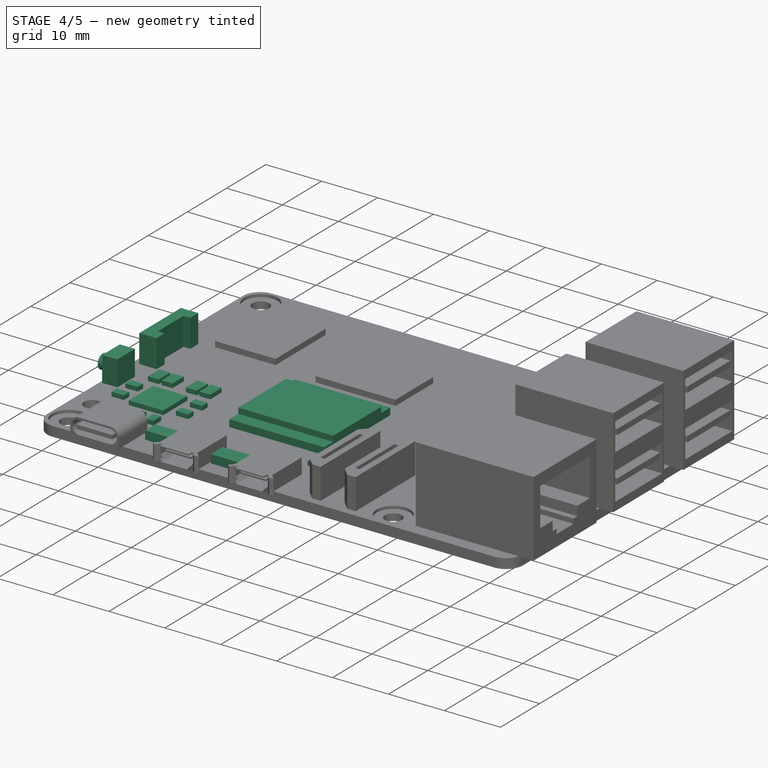
[diagram: stage 4 of 5 — iso view after this stage's code; geometry added in this stage tinted green]
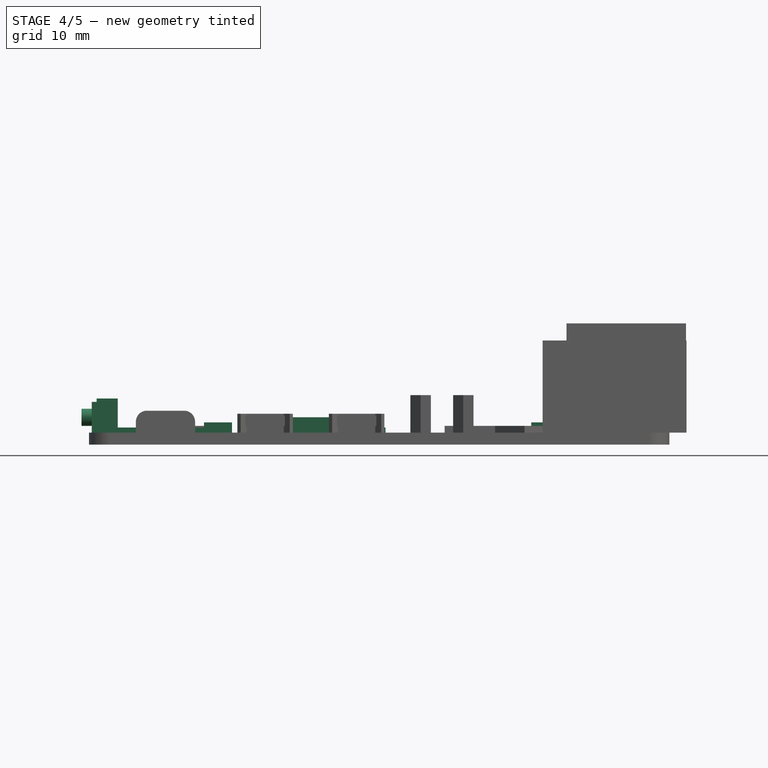
[diagram: stage 4 of 5 — front view after this stage's code; geometry added in this stage tinted green]
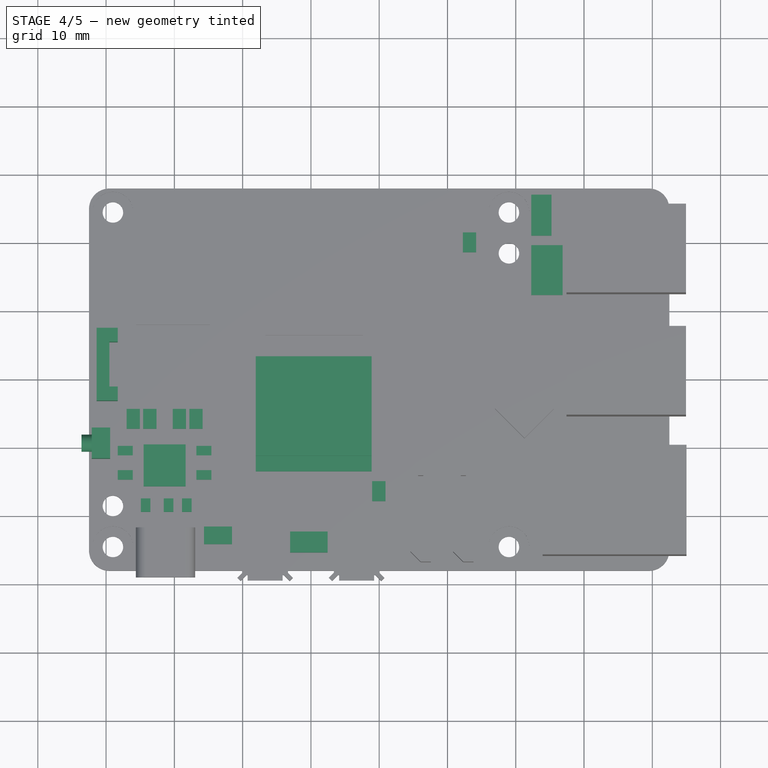
[diagram: stage 4 of 5 — top view after this stage's code; geometry added in this stage tinted green]
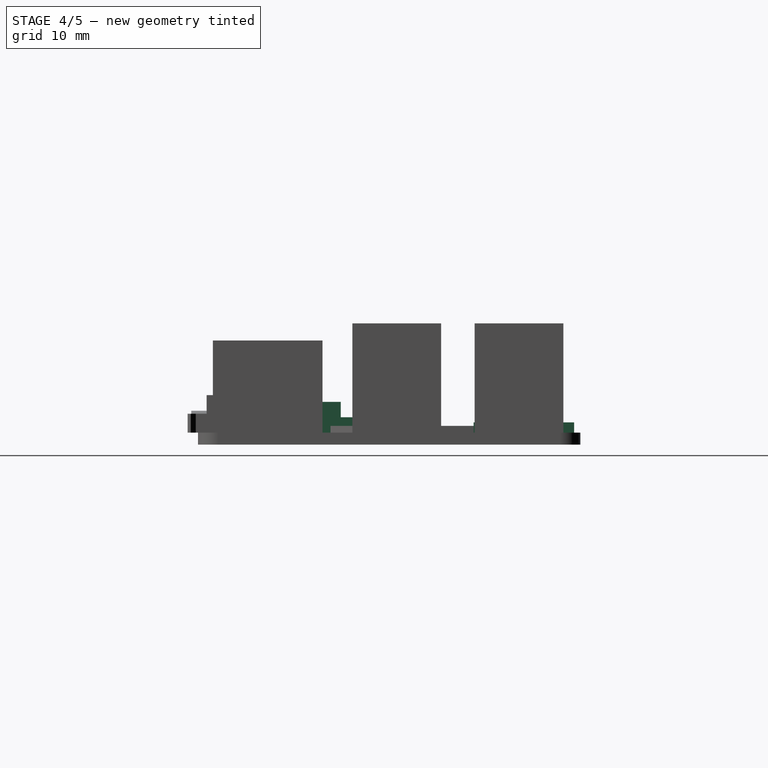
[diagram: stage 4 of 5 — right view after this stage's code; geometry added in this stage tinted green]
FEATURE [Sketcher::SketchObject] Sketch016
  ArcFitTolerance = 1e-06
  AttachmentSupport = -> [Pad006]
  ExternalGeometry = -> [Pad006]
  FullyConstrained = true
  MakeInternals = false
  MapMode = 5
  Placement = pos=(0,0,1.75) rot=(0,0,1;0rad)
  sketch-geometry (16):
    g0: LineSegment StartX=22.28 StartY=19.68 StartZ=0 EndX=22.28 EndY=12.37 EndZ=0
    g1: LineSegment StartX=22.28 StartY=12.37 StartZ=0 EndX=26.86 EndY=12.37 EndZ=0
    g2: LineSegment StartX=26.86 StartY=12.37 StartZ=0 EndX=26.86 EndY=19.68 EndZ=0
    g3: LineSegment StartX=26.86 StartY=19.68 StartZ=0 EndX=22.28 EndY=19.68 EndZ=0
    g4: LineSegment StartX=22.28 StartY=27.08 StartZ=0 EndX=22.28 EndY=21.07 EndZ=0
    g5: LineSegment StartX=22.28 StartY=21.07 StartZ=0 EndX=25.24 EndY=21.07 EndZ=0
    g6: LineSegment StartX=25.24 StartY=21.07 StartZ=0 EndX=25.24 EndY=27.08 EndZ=0
    g7: LineSegment StartX=25.24 StartY=27.08 StartZ=0 EndX=22.28 EndY=27.08 EndZ=0
    g8: LineSegment StartX=-25.65 StartY=-21.54 StartZ=0 EndX=-25.65 EndY=-24.12 EndZ=0
    g9: LineSegment StartX=-25.65 StartY=-24.12 StartZ=0 EndX=-21.56 EndY=-24.12 EndZ=0
    g10: LineSegment StartX=-21.56 StartY=-24.12 StartZ=0 EndX=-21.56 EndY=-21.54 EndZ=0
    g11: LineSegment StartX=-21.56 StartY=-21.54 StartZ=0 EndX=-25.65 EndY=-21.54 EndZ=0
    g12: LineSegment StartX=-13.05 StartY=-22.27 StartZ=0 EndX=-13.05 EndY=-25.34 EndZ=0
    g13: LineSegment StartX=-13.05 StartY=-25.34 StartZ=0 EndX=-7.55 EndY=-25.34 EndZ=0
    g14: LineSegment StartX=-7.55 StartY=-25.34 StartZ=0 EndX=-7.55 EndY=-22.27 EndZ=0
    g15: LineSegment StartX=-7.55 StartY=-22.27 StartZ=0 EndX=-13.05 EndY=-22.27 EndZ=0
  constraints (48):
    c: Coincident(g0,g1)
    c: Coincident(g1,g2)
    c: Coincident(g2,g3)
    c: Coincident(g3,g0)
    c: Vertical(g0)
    c: Vertical(g2)
    c: Horizontal(g1)
    c: Horizontal(g3)
    c: Coincident(g4,g5)
    c: Coincident(g5,g6)
    c: Coincident(g6,g7)
    c: Coincident(g7,g4)
    c: Vertical(g4)
    c: Vertical(g6)
    c: Horizontal(g5)
    c: Horizontal(g7)
    c: Coincident(g8,g9)
    c: Coincident(g9,g10)
    c: Coincident(g10,g11)
    c: Coincident(g11,g8)
    c: Vertical(g8)
    c: Vertical(g10)
    c: Horizontal(g9)
    c: Horizontal(g11)
    c: Coincident(g12,g13)
    c: Coincident(g13,g14)
    c: Coincident(g14,g15)
    c: Coincident(g15,g12)
    c: Vertical(g12)
    c: Vertical(g14)
    c: Horizontal(g13)
    c: Horizontal(g15)
    c: DistanceX(g11,g11) = 4.09
    c: DistanceY(g8,g8) = 2.58
    c: DistanceX(g10) = -21.56
    c: DistanceY(g10) = -21.54
    c: DistanceX(g13) = -7.55
    c: DistanceX(g13,g13) = 5.5
    c: DistanceY(g14,g14) = 3.07
    c: DistanceY(g14) = -22.27
    c: DistanceX(g0) = 22.28
    c: DistanceX(g1,g1) = 4.58
    c: DistanceY(g0,g0) = 7.31
    c: DistanceY(g0) = 12.37
    c: DistanceY(g2,g5) = 1.39
    c: DistanceY(g6,g6) = 6.01
    c: DistanceX(g7,g7) = 2.96
    c: Vertical(g4,g0)
FEATURE [PartDesign::Pad] Pad007  label="Electronics2Pad"
  BaseFeature = -> Pad006
  Direction = (0,0,1)
  Length = 1.5
  Length2 = 10
  Profile = -> Sketch016
  ReferenceAxis = -> Sketch016 [N_Axis]
  Refine = true
  Suppressed = false
  Type = 0
FEATURE [Sketcher::SketchObject] Sketch017
  ArcFitTolerance = 1e-06
  AttachmentSupport = -> [Pad007]
  ExternalGeometry = -> [Pad007]
  FullyConstrained = true
  MakeInternals = false
  MapMode = 5
  Placement = pos=(0,0,1.75) rot=(0,0,1;0rad)
  sketch-geometry (65):
    g0: LineSegment StartX=-37 StartY=-4.29 StartZ=0 EndX=-37 EndY=-7.21 EndZ=0
    g1: LineSegment StartX=-37 StartY=-7.21 StartZ=0 EndX=-35.05 EndY=-7.21 EndZ=0
    g2: LineSegment StartX=-35.05 StartY=-7.21 StartZ=0 EndX=-35.05 EndY=-4.29 EndZ=0
    g3: LineSegment StartX=-35.05 StartY=-4.29 StartZ=0 EndX=-37 EndY=-4.29 EndZ=0
    g4: LineSegment StartX=-34.57 StartY=-4.29 StartZ=0 EndX=-34.57 EndY=-7.21 EndZ=0
    g5: LineSegment StartX=-34.57 StartY=-7.21 StartZ=0 EndX=-32.62 EndY=-7.21 EndZ=0
    g6: LineSegment StartX=-32.62 StartY=-7.21 StartZ=0 EndX=-32.62 EndY=-4.29 EndZ=0
    g7: LineSegment StartX=-32.62 StartY=-4.29 StartZ=0 EndX=-34.57 EndY=-4.29 EndZ=0
    g8: LineSegment StartX=-30.24 StartY=-4.29 StartZ=0 EndX=-30.24 EndY=-7.21 EndZ=0
    g9: LineSegment StartX=-30.24 StartY=-7.21 StartZ=0 EndX=-28.29 EndY=-7.21 EndZ=0
    g10: LineSegment StartX=-28.29 StartY=-7.21 StartZ=0 EndX=-28.29 EndY=-4.29 EndZ=0
    g11: LineSegment StartX=-28.29 StartY=-4.29 StartZ=0 EndX=-30.24 EndY=-4.29 EndZ=0
    g12: LineSegment StartX=-27.81 StartY=-4.29 StartZ=0 EndX=-27.81 EndY=-7.21 EndZ=0
    g13: LineSegment StartX=-27.81 StartY=-7.21 StartZ=0 EndX=-25.86 EndY=-7.21 EndZ=0
    g14: LineSegment StartX=-25.86 StartY=-7.21 StartZ=0 EndX=-25.86 EndY=-4.29 EndZ=0
    g15: LineSegment StartX=-25.86 StartY=-4.29 StartZ=0 EndX=-27.81 EndY=-4.29 EndZ=0
    g16: LineSegment StartX=-38.29 StartY=-9.71 StartZ=0 EndX=-38.29 EndY=-11.1 EndZ=0
    g17: LineSegment StartX=-38.29 StartY=-11.1 StartZ=0 EndX=-36.09 EndY=-11.1 EndZ=0
    g18: LineSegment StartX=-36.09 StartY=-11.1 StartZ=0 EndX=-36.09 EndY=-9.71 EndZ=0
    g19: LineSegment StartX=-36.09 StartY=-9.71 StartZ=0 EndX=-38.29 EndY=-9.71 EndZ=0
    g20: LineSegment StartX=-38.29 StartY=-13.27 StartZ=0 EndX=-38.29 EndY=-14.66 EndZ=0
    g21: LineSegment StartX=-38.29 StartY=-14.66 StartZ=0 EndX=-36.09 EndY=-14.66 EndZ=0
    g22: LineSegment StartX=-36.09 StartY=-14.66 StartZ=0 EndX=-36.09 EndY=-13.27 EndZ=0
    g23: LineSegment StartX=-36.09 StartY=-13.27 StartZ=0 EndX=-38.29 EndY=-13.27 EndZ=0
    g24: LineSegment StartX=-26.77 StartY=-9.71 StartZ=0 EndX=-26.77 EndY=-11.1 EndZ=0
    g25: LineSegment StartX=-26.77 StartY=-11.1 StartZ=0 EndX=-24.57 EndY=-11.1 EndZ=0
    g26: LineSegment StartX=-24.57 StartY=-11.1 StartZ=0 EndX=-24.57 EndY=-9.71 EndZ=0
    g27: LineSegment StartX=-24.57 StartY=-9.71 StartZ=0 EndX=-26.77 EndY=-9.71 EndZ=0
    g28: LineSegment StartX=-26.77 StartY=-13.27 StartZ=0 EndX=-26.77 EndY=-14.66 EndZ=0
    g29: LineSegment StartX=-26.77 StartY=-14.66 StartZ=0 EndX=-24.57 EndY=-14.66 EndZ=0
    g30: LineSegment StartX=-24.57 StartY=-14.66 StartZ=0 EndX=-24.57 EndY=-13.27 EndZ=0
    g31: LineSegment StartX=-24.57 StartY=-13.27 StartZ=0 EndX=-26.77 EndY=-13.27 EndZ=0
    g32: LineSegment StartX=-34.9104 StartY=-17.4 StartZ=0 EndX=-34.9104 EndY=-19.39 EndZ=0
    g33: LineSegment StartX=-34.9104 StartY=-19.39 StartZ=0 EndX=-33.5069 EndY=-19.39 EndZ=0
    g34: LineSegment StartX=-33.5069 StartY=-19.39 StartZ=0 EndX=-33.5069 EndY=-17.4 EndZ=0
    g35: LineSegment StartX=-33.5069 StartY=-17.4 StartZ=0 EndX=-34.9104 EndY=-17.4 EndZ=0
    g36: LineSegment StartX=-31.5469 StartY=-17.4 StartZ=0 EndX=-31.5469 EndY=-19.39 EndZ=0
    g37: LineSegment StartX=-31.5469 StartY=-19.39 StartZ=0 EndX=-30.1435 EndY=-19.39 EndZ=0
    g38: LineSegment StartX=-30.1435 StartY=-19.39 StartZ=0 EndX=-30.1435 EndY=-17.4 EndZ=0
    g39: LineSegment StartX=-30.1435 StartY=-17.4 StartZ=0 EndX=-31.5469 EndY=-17.4 EndZ=0
    g40: LineSegment StartX=-28.8735 StartY=-17.4 StartZ=0 EndX=-28.8735 EndY=-19.39 EndZ=0
    g41: LineSegment StartX=-28.8735 StartY=-19.39 StartZ=0 EndX=-27.47 EndY=-19.39 EndZ=0
    g42: LineSegment StartX=-27.47 StartY=-19.39 StartZ=0 EndX=-27.47 EndY=-17.4 EndZ=0
    g43: LineSegment StartX=-27.47 StartY=-17.4 StartZ=0 EndX=-28.8735 EndY=-17.4 EndZ=0
    g44: LineSegment StartX=-34.51 StartY=-9.49 StartZ=0 EndX=-34.51 EndY=-15.65 EndZ=0
    g45: LineSegment StartX=-34.51 StartY=-15.65 StartZ=0 EndX=-28.35 EndY=-15.65 EndZ=0
    g46: LineSegment StartX=-28.35 StartY=-15.65 StartZ=0 EndX=-28.35 EndY=-9.49 EndZ=0
    g47: LineSegment StartX=-28.35 StartY=-9.49 StartZ=0 EndX=-34.51 EndY=-9.49 EndZ=0
    g48: LineSegment [constr] StartX=-35.05 StartY=-4.29 StartZ=0 EndX=-34.57 EndY=-4.29 EndZ=0
    g49: LineSegment [constr] StartX=-28.29 StartY=-4.29 StartZ=0 EndX=-27.81 EndY=-4.29 EndZ=0
    g50: LineSegment [constr] StartX=-32.62 StartY=-4.29 StartZ=0 EndX=-30.24 EndY=-4.29 EndZ=0
    g51: GeomPoint [constr] X=-31.43 Y=-4.29 Z=0
    g52: GeomPoint [constr] X=-31.43 Y=-9.49 Z=0
    g53: LineSegment [constr] StartX=-36.09 StartY=-11.1 StartZ=0 EndX=-34.51 EndY=-11.1 EndZ=0
    g54: LineSegment [constr] StartX=-36.09 StartY=-13.27 StartZ=0 EndX=-34.51 EndY=-13.27 EndZ=0
    g55: LineSegment [constr] StartX=-26.77 StartY=-13.27 StartZ=0 EndX=-28.35 EndY=-13.27 EndZ=0
    g56: LineSegment [constr] StartX=-26.77 StartY=-11.1 StartZ=0 EndX=-28.35 EndY=-11.1 EndZ=0
    g57: LineSegment StartX=-1.03 StartY=-14.89 StartZ=0 EndX=-1.03 EndY=-17.81 EndZ=0
    g58: LineSegment StartX=-1.03 StartY=-17.81 StartZ=0 EndX=0.92 EndY=-17.81 EndZ=0
    g59: LineSegment StartX=0.92 StartY=-17.81 StartZ=0 EndX=0.92 EndY=-14.89 EndZ=0
    g60: LineSegment StartX=0.92 StartY=-14.89 StartZ=0 EndX=-1.03 EndY=-14.89 EndZ=0
    g61: LineSegment StartX=12.25 StartY=21.56 StartZ=0 EndX=12.25 EndY=18.64 EndZ=0
    g62: LineSegment StartX=12.25 StartY=18.64 StartZ=0 EndX=14.2 EndY=18.64 EndZ=0
    g63: LineSegment StartX=14.2 StartY=18.64 StartZ=0 EndX=14.2 EndY=21.56 EndZ=0
    g64: LineSegment StartX=14.2 StartY=21.56 StartZ=0 EndX=12.25 EndY=21.56 EndZ=0
  constraints (188):
    c: Coincident(g0,g1)
    c: Coincident(g1,g2)
    c: Coincident(g2,g3)
    c: Coincident(g3,g0)
    c: Vertical(g0)
    c: Vertical(g2)
    c: Horizontal(g1)
    c: Horizontal(g3)
    c: Coincident(g4,g5)
    c: Coincident(g5,g6)
    c: Coincident(g6,g7)
    c: Coincident(g7,g4)
    c: Vertical(g4)
    c: Vertical(g6)
    c: Horizontal(g5)
    c: Horizontal(g7)
    c: Coincident(g8,g9)
    c: Coincident(g9,g10)
    c: Coincident(g10,g11)
    c: Coincident(g11,g8)
    c: Vertical(g8)
    c: Vertical(g10)
    c: Horizontal(g9)
    c: Horizontal(g11)
    c: Coincident(g12,g13)
    c: Coincident(g13,g14)
    c: Coincident(g14,g15)
    c: Coincident(g15,g12)
    c: Vertical(g12)
    c: Vertical(g14)
    c: Horizontal(g13)
    c: Horizontal(g15)
    c: Coincident(g16,g17)
    c: Coincident(g17,g18)
    c: Coincident(g18,g19)
    c: Coincident(g19,g16)
    c: Vertical(g16)
    c: Vertical(g18)
    c: Horizontal(g17)
    c: Horizontal(g19)
    c: Coincident(g20,g21)
    c: Coincident(g21,g22)
    c: Coincident(g22,g23)
    c: Coincident(g23,g20)
    c: Vertical(g20)
    c: Vertical(g22)
    c: Horizontal(g21)
    c: Horizontal(g23)
    c: Coincident(g24,g25)
    c: Coincident(g25,g26)
    c: Coincident(g26,g27)
    c: Coincident(g27,g24)
    c: Vertical(g24)
    c: Vertical(g26)
    c: Horizontal(g25)
    c: Horizontal(g27)
    c: Coincident(g28,g29)
    c: Coincident(g29,g30)
    c: Coincident(g30,g31)
    c: Coincident(g31,g28)
    c: Vertical(g28)
    c: Vertical(g30)
    c: Horizontal(g29)
    c: Horizontal(g31)
    c: Coincident(g32,g33)
    c: Coincident(g33,g34)
    c: Coincident(g34,g35)
    c: Coincident(g35,g32)
    c: Vertical(g32)
    c: Vertical(g34)
    c: Horizontal(g33)
    c: Horizontal(g35)
    c: Coincident(g36,g37)
    c: Coincident(g37,g38)
    c: Coincident(g38,g39)
    c: Coincident(g39,g36)
    c: Vertical(g36)
    c: Vertical(g38)
    c: Horizontal(g37)
    c: Horizontal(g39)
    c: Coincident(g40,g41)
    c: Coincident(g41,g42)
    c: Coincident(g42,g43)
    c: Coincident(g43,g40)
    c: Vertical(g40)
    c: Vertical(g42)
    c: Horizontal(g41)
    c: Horizontal(g43)
    c: Coincident(g44,g45)
    c: Coincident(g45,g46)
    c: Coincident(g46,g47)
    c: Coincident(g47,g44)
    c: Vertical(g44)
    c: Vertical(g46)
    c: Horizontal(g45)
    c: Horizontal(g47)
    c: Horizontal(g34,g36)
    c: Horizontal(g36,g40)
    c: Horizontal(g33,g36)
    c: Horizontal(g36,g40)
    c: Equal(g43,g39)
    c: Equal(g39,g35)
    c: Horizontal(g1,g4)
    c: Horizontal(g4,g12)
    c: Horizontal(g12,g9)
    c: Horizontal(g2,g4)
    c: Horizontal(g4,g10)
    c: Horizontal(g10,g12)
    c: Equal(g7,g3)
    c: Equal(g3,g11)
    c: Equal(g11,g15)
    c: Coincident(g48,g2)
    c: Coincident(g48,g4)
    c: Coincident(g49,g10)
    c: Coincident(g49,g12)
    c: DistanceX(g49,g49) = 0.48
    c: Equal(g48,g49)
    c: DistanceX(g15,g15) = 1.95
    c: DistanceY(g14,g14) = 2.92
    c: DistanceY(g14) = -4.29
    c: DistanceX(g14) = -25.86
    c: DistanceX(g6,g8) = 2.38
    c: Coincident(g50,g6)
    c: Coincident(g50,g8)
    c: Symmetric(g50,g50,g51)
    c: Symmetric(g47,g47,g52)
    c: Vertical(g52,g51)
    c: DistanceY(g24,g46) = 0.22
    c: Horizontal(g18,g24)
    c: Horizontal(g24,g17)
    c: Horizontal(g22,g28)
    c: Horizontal(g28,g21)
    c: Equal(g23,g31)
    c: Equal(g31,g25)
    c: Equal(g25,g17)
    c: Coincident(g53,g17)
    c: PointOnObject(g53,g44)
    c: Horizontal(g53)
    c: Coincident(g54,g22)
    c: PointOnObject(g54,g44)
    c: Horizontal(g54)
    c: Coincident(g55,g28)
    c: PointOnObject(g55,g46)
    c: Horizontal(g55)
    c: Coincident(g56,g24)
    c: PointOnObject(g56,g46)
    c: Horizontal(g56)
    c: Equal(g56,g55)
    c: Equal(g54,g53)
    c: DistanceX(g47,g47) = 6.16
    c: Equal(g46,g47)
    c: Equal(g18,g22)
    c: DistanceX(g19,g19) = 2.2
    c: DistanceY(g18,g18) = 1.39
    c: DistanceX(g53,g53) = 1.58
    c: DistanceY(g52,g51) = 5.2
    c: Equal(g55,g54)
    c: Equal(g54,g56)
    c: DistanceY(g28,g24) = 2.17
    c: DistanceX(g34,g36) = 1.96
    c: DistanceX(g38,g40) = 1.27
    c: DistanceY(g42,g45) = 1.75
    c: DistanceX(g45,g42) = 0.88
    c: DistanceY(g42,g42) = 1.99
    c: Coincident(g57,g58)
    c: Coincident(g58,g59)
    c: Coincident(g59,g60)
    c: Coincident(g60,g57)
    c: Vertical(g57)
    c: Vertical(g59)
    c: Horizontal(g58)
    c: Horizontal(g60)
    c: Coincident(g61,g62)
    c: Coincident(g62,g63)
    c: Coincident(g63,g64)
    c: Coincident(g64,g61)
    c: Vertical(g61)
    c: Vertical(g63)
    c: Horizontal(g62)
    c: Horizontal(g64)
    c: Equal(g64,g60)
    c: Equal(g60,g15)
    c: Equal(g57,g14)
    c: Equal(g59,g61)
    c: DistanceY(g61) = 18.64
    c: DistanceX(g61) = 12.25
    c: DistanceX(g59) = 0.92
    c: DistanceY(g57) = -14.89
FEATURE [PartDesign::Pad] Pad008  label="Electronics3Pad"
  BaseFeature = -> Pad007
  Direction = (0,0,1)
  Length = 0.75
  Length2 = 10
  Profile = -> Sketch017
  ReferenceAxis = -> Sketch017 [N_Axis]
  Refine = true
  Suppressed = false
  Type = 0
FEATURE [Sketcher::SketchObject] Sketch018
  ArcFitTolerance = 1e-06
  AttachmentSupport = -> [Pad008]
  ExternalGeometry = -> [Pad008]
  FullyConstrained = true
  MakeInternals = false
  MapMode = 5
  Placement = pos=(0,0,1.75) rot=(0,0,1;0rad)
  sketch-geometry (8):
    g0: LineSegment StartX=-41.39 StartY=7.51 StartZ=0 EndX=-41.39 EndY=-3.14 EndZ=0
    g1: LineSegment StartX=-41.39 StartY=-3.14 StartZ=0 EndX=-38.3 EndY=-3.14 EndZ=0
    g2: LineSegment StartX=-38.3 StartY=-3.14 StartZ=0 EndX=-38.3 EndY=-1.09 EndZ=0
    g3: LineSegment StartX=-38.3 StartY=-1.09 StartZ=0 EndX=-39.52 EndY=-1.09 EndZ=0
    g4: LineSegment StartX=-39.52 StartY=-1.09 StartZ=0 EndX=-39.52 EndY=5.46 EndZ=0
    g5: LineSegment StartX=-39.52 StartY=5.46 StartZ=0 EndX=-38.3 EndY=5.46 EndZ=0
    g6: LineSegment StartX=-38.3 StartY=5.46 StartZ=0 EndX=-38.3 EndY=7.51 EndZ=0
    g7: LineSegment StartX=-38.3 StartY=7.51 StartZ=0 EndX=-41.39 EndY=7.51 EndZ=0
  constraints (24):
    c: Vertical(g0)
    c: Coincident(g0,g1)
    c: Horizontal(g1)
    c: Coincident(g1,g2)
    c: Vertical(g2)
    c: Coincident(g2,g3)
    c: Coincident(g3,g4)
    c: Vertical(g4)
    c: Coincident(g4,g5)
    c: Coincident(g5,g6)
    c: Vertical(g6)
    c: Coincident(g6,g7)
    c: Coincident(g7,g0)
    c: Horizontal(g7)
    c: Horizontal(g3)
    c: Horizontal(g5)
    c: Equal(g6,g2)
    c: DistanceY(g0,g-3) = 17.49
    c: DistanceX(g-3,g0) = 1.11
    c: DistanceX(g7,g7) = 3.09
    c: DistanceY(g0,g0) = 10.65
    c: DistanceY(g2,g2) = 2.05
    c: DistanceX(g3,g3) = 1.22
    c: Vertical(g2,g5)
FEATURE [PartDesign::Pad] Pad009  label="AddPortPad"
  BaseFeature = -> Pad008
  Direction = (0,0,1)
  Length = 5
  Length2 = 10
  Profile = -> Sketch018
  ReferenceAxis = -> Sketch018 [N_Axis]
  Refine = true
  Suppressed = false
  Type = 0
FEATURE [Sketcher::SketchObject] Sketch019
  ArcFitTolerance = 1e-06
  AttachmentSupport = -> [Pad009]
  ExternalGeometry = -> [Pad009]
  FullyConstrained = true
  MakeInternals = false
  MapMode = 5
  Placement = pos=(0,0,1.75) rot=(0,0,1;0rad)
  sketch-geometry (4):
    g0: LineSegment StartX=-42.1 StartY=-7.1 StartZ=0 EndX=-42.1 EndY=-11.6 EndZ=0
    g1: LineSegment StartX=-42.1 StartY=-11.6 StartZ=0 EndX=-39.4 EndY=-11.6 EndZ=0
    g2: LineSegment StartX=-39.4 StartY=-11.6 StartZ=0 EndX=-39.4 EndY=-7.1 EndZ=0
    g3: LineSegment StartX=-39.4 StartY=-7.1 StartZ=0 EndX=-42.1 EndY=-7.1 EndZ=0
  constraints (12):
    c: Coincident(g0,g1)
    c: Coincident(g1,g2)
    c: Coincident(g2,g3)
    c: Coincident(g3,g0)
    c: Vertical(g0)
    c: Vertical(g2)
    c: Horizontal(g1)
    c: Horizontal(g3)
    c: DistanceY(g2,g2) = 4.5
    c: DistanceX(g3,g3) = 2.7
    c: DistanceX(g-3,g0) = 0.4
    c: DistanceY(g1) = -11.6
FEATURE [PartDesign::Pad] Pad010  label="SwtichPad"
  BaseFeature = -> Pad009
  Direction = (0,0,1)
  Length = 4.5
  Length2 = 10
  Profile = -> Sketch019
  ReferenceAxis = -> Sketch019 [N_Axis]
  Refine = true
  Suppressed = false
  Type = 0
FEATURE [Sketcher::SketchObject] Sketch020
  ArcFitTolerance = 1e-06
  AttachmentSupport = -> [Pad010]
  ExternalGeometry = -> [Pad010]
  FullyConstrained = true
  MakeInternals = false
  MapMode = 5
  Placement = pos=(-42.1,0,0) rot=(0.57735,-0.57735,-0.57735;2.0944rad)
  sketch-geometry (3):
    g0: GeomPoint X=7.1 Y=4 Z=0
    g1: GeomPoint X=9.35 Y=6.25 Z=0
    g2: Circle CenterX=9.35 CenterY=4 CenterZ=0 NormalX=0 NormalY=0 NormalZ=1 AngleXU=0 Radius=1.25
  constraints (5):
    c: Symmetric(g-3,g-3,g0)
    c: Symmetric(g-4,g-4,g1)
    c: Vertical(g2,g1)
    c: Horizontal(g2,g0)
    c: Radius(g2) = 1.25
FEATURE [PartDesign::Pad] Pad011  label="ButtonPad"
  BaseFeature = -> Pad010
  Direction = (-1,0,0)
  Length = 1.5
  Length2 = 10
  Profile = -> Sketch020
  ReferenceAxis = -> Sketch020 [N_Axis]
  Refine = true
  Suppressed = false
  Type = 0
FEATURE [Sketcher::SketchObject] Sketch021
  ArcFitTolerance = 1e-06
  AttachmentSupport = -> [Pad011]
  ExternalGeometry = -> [Pad011]
  FullyConstrained = true
  MakeInternals = false
  MapMode = 5
  Placement = pos=(0,0,1.75) rot=(0,0,1;0rad)
FEATURE [Sketcher::SketchObject] Sketch022
  ArcFitTolerance = 1e-06
  AttachmentSupport = -> [Pad011]
  FullyConstrained = true
  MakeInternals = false
  MapMode = 5
  Placement = pos=(0,0,1.75) rot=(0,0,1;0rad)
  sketch-geometry (4):
    g0: LineSegment StartX=-18.08 StartY=3.41 StartZ=0 EndX=-18.08 EndY=-13.46 EndZ=0
    g1: LineSegment StartX=-18.08 StartY=-13.46 StartZ=0 EndX=-1.1 EndY=-13.46 EndZ=0
    g2: LineSegment StartX=-1.1 StartY=-13.46 StartZ=0 EndX=-1.1 EndY=3.41 EndZ=0
    g3: LineSegment StartX=-1.1 StartY=3.41 StartZ=0 EndX=-18.08 EndY=3.41 EndZ=0
  constraints (12):
    c: Coincident(g0,g1)
    c: Coincident(g1,g2)
    c: Coincident(g2,g3)
    c: Coincident(g3,g0)
    c: Vertical(g0)
    c: Vertical(g2)
    c: Horizontal(g1)
    c: Horizontal(g3)
    c: DistanceX(g1,g1) = 16.98
    c: DistanceY(g0,g0) = 16.87
    c: DistanceX(g2) = -1.1
    c: DistanceY(g2) = 3.41
FEATURE [PartDesign::Pad] Pad012  label="ProcessorPad"
  BaseFeature = -> Pad011
  Direction = (0,0,1)
  Length = 1.25
  Length2 = 10
  Profile = -> Sketch022
  ReferenceAxis = -> Sketch022 [N_Axis]
  Refine = true
  Suppressed = false
  Type = 0
FEATURE [Sketcher::SketchObject] Sketch023
  ArcFitTolerance = 1e-06
  AttachmentSupport = -> [Pad012]
  ExternalGeometry = -> [Pad012]
  FullyConstrained = true
  MakeInternals = false
  MapMode = 5
  Placement = pos=(0,0,3) rot=(0,0,1;0rad)
  sketch-geometry (6):
    g0: LineSegment StartX=-18.08 StartY=1.1 StartZ=0 EndX=-18.08 EndY=-11.15 EndZ=0
    g1: LineSegment StartX=-18.08 StartY=-11.15 StartZ=0 EndX=-1.1 EndY=-11.15 EndZ=0
    g2: LineSegment StartX=-1.1 StartY=-11.15 StartZ=0 EndX=-1.1 EndY=1.1 EndZ=0
    g3: LineSegment StartX=-1.1 StartY=1.1 StartZ=0 EndX=-18.08 EndY=1.1 EndZ=0
    g4: GeomPoint X=-18.08 Y=-5.025 Z=0
    g5: GeomPoint X=-18.08 Y=-5.025 Z=0
  constraints (13):
    c: Coincident(g0,g1)
    c: Coincident(g1,g2)
    c: Coincident(g2,g3)
    c: Coincident(g3,g0)
    c: Vertical(g0)
    c: Vertical(g2)
    c: Horizontal(g1)
    c: Horizontal(g3)
    c: PointOnObject(g1,g-5)
    c: DistanceY(g2,g2) = 12.25
    c: Symmetric(g-4,g-4,g4)
    c: Symmetric(g0,g0,g5)
    c: Coincident(g5,g4)
FEATURE [PartDesign::Pad] Pad013  label="Processor2Pad"
  BaseFeature = -> Pad012
  Direction = (0,0,1)
  Length = 1
  Length2 = 10
  Profile = -> Sketch023
  ReferenceAxis = -> Sketch023 [N_Axis]
  Refine = true
  Suppressed = false
  Type = 0
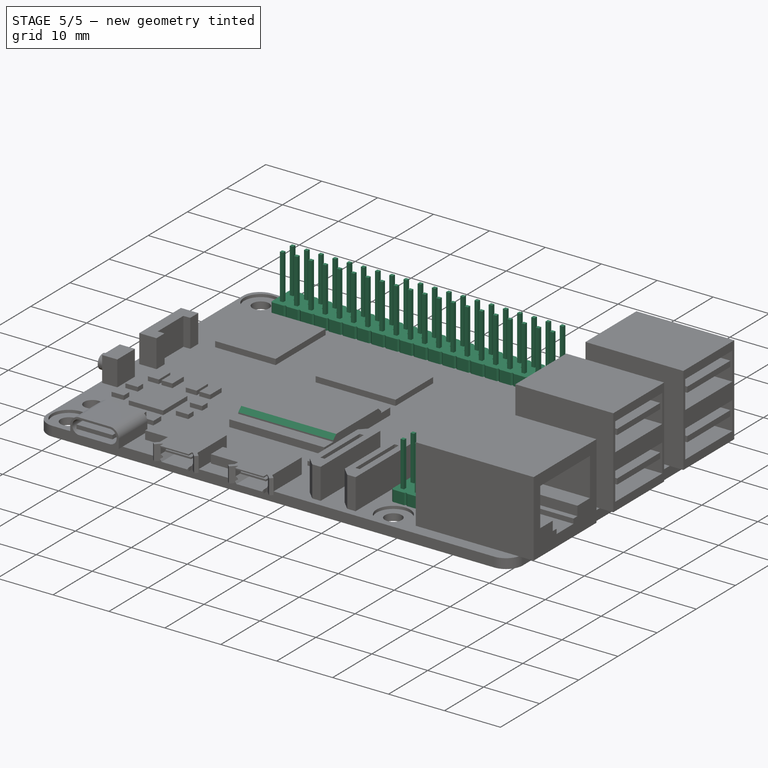
[diagram: stage 5 of 5 — iso view after this stage's code; geometry added in this stage tinted green]
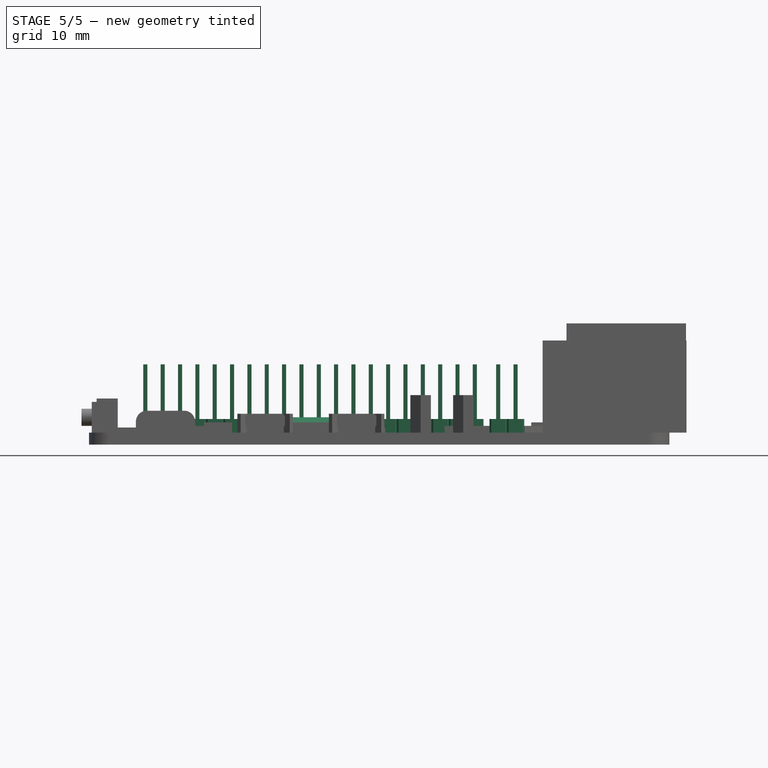
[diagram: stage 5 of 5 — front view after this stage's code; geometry added in this stage tinted green]
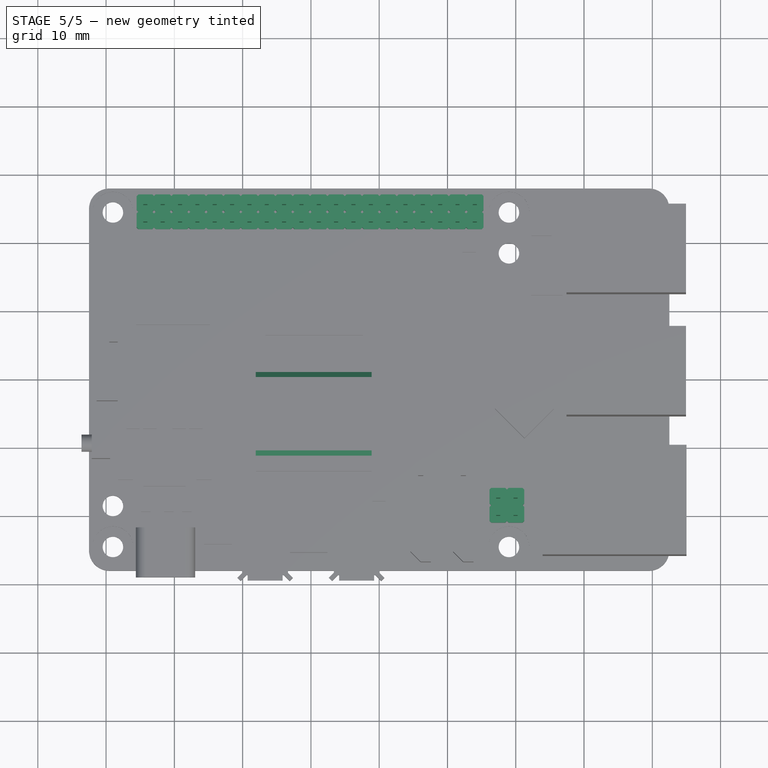
[diagram: stage 5 of 5 — top view after this stage's code; geometry added in this stage tinted green]
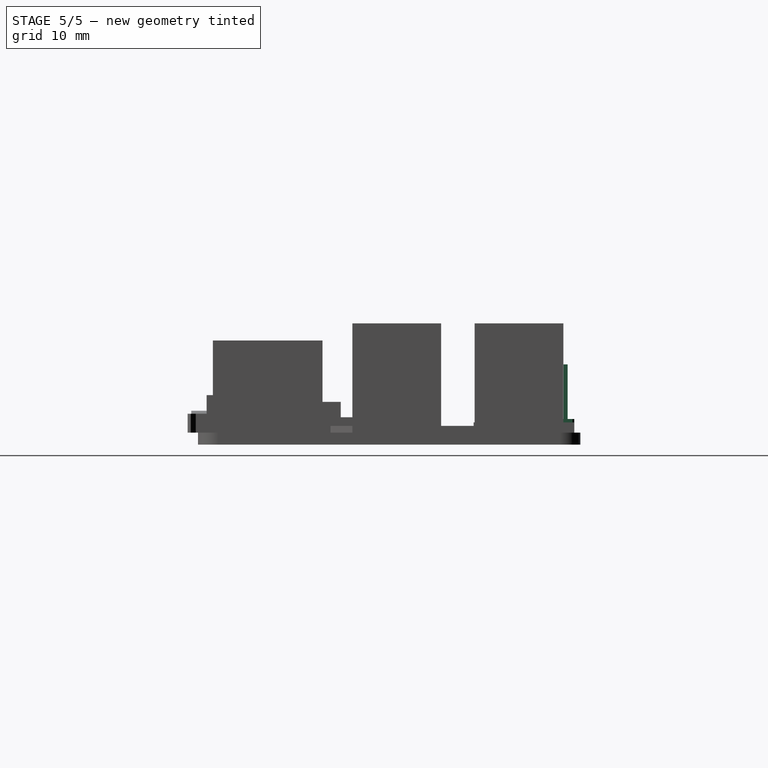
[diagram: stage 5 of 5 — right view after this stage's code; geometry added in this stage tinted green]
FEATURE [PartDesign::Chamfer] Chamfer  label="ProcessorChamfer"
  Angle = 45
  Base = -> Pad013 [Edge729,Edge726]
  BaseFeature = -> Pad013
  ChamferType = 0
  FlipDirection = false
  Refine = true
  Size = 0.75
  Size2 = 1
  SupportTransform = false
  Suppressed = false
  UseAllEdges = false
FEATURE [Sketcher::SketchObject] Sketch024
  ArcFitTolerance = 1e-06
  AttachmentSupport = -> [Chamfer]
  ExternalGeometry = -> [Chamfer]
  FullyConstrained = true
  MakeInternals = false
  MapMode = 5
  Placement = pos=(0,0,1.75) rot=(0,0,1;0rad)
  sketch-geometry (18):
    g0: LineSegment StartX=-35.52 StartY=26.85 StartZ=0 EndX=-35.52 EndY=24.81 EndZ=0
    g1: LineSegment StartX=-35.52 StartY=24.81 StartZ=0 EndX=-35.27 EndY=24.56 EndZ=0
    g2: LineSegment StartX=-35.27 StartY=24.56 StartZ=0 EndX=-35.52 EndY=24.31 EndZ=0
    g3: LineSegment StartX=-35.52 StartY=24.31 StartZ=0 EndX=-35.52 EndY=22.27 EndZ=0
    g4: LineSegment StartX=-35.52 StartY=22.27 StartZ=0 EndX=-35.27 EndY=22.02 EndZ=0
    g5: LineSegment StartX=-35.27 StartY=22.02 StartZ=0 EndX=-33.23 EndY=22.02 EndZ=0
    g6: LineSegment StartX=-33.23 StartY=22.02 StartZ=0 EndX=-32.98 EndY=22.27 EndZ=0
    g7: LineSegment StartX=-32.98 StartY=22.27 StartZ=0 EndX=-32.98 EndY=24.31 EndZ=0
    g8: LineSegment StartX=-32.98 StartY=24.31 StartZ=0 EndX=-33.23 EndY=24.56 EndZ=0
    g9: LineSegment StartX=-33.23 StartY=24.56 StartZ=0 EndX=-32.98 EndY=24.81 EndZ=0
    g10: LineSegment StartX=-32.98 StartY=24.81 StartZ=0 EndX=-32.98 EndY=26.85 EndZ=0
    g11: LineSegment StartX=-32.98 StartY=26.85 StartZ=0 EndX=-33.23 EndY=27.1 EndZ=0
    g12: LineSegment StartX=-33.23 StartY=27.1 StartZ=0 EndX=-35.27 EndY=27.1 EndZ=0
    g13: LineSegment StartX=-35.27 StartY=27.1 StartZ=0 EndX=-35.52 EndY=26.85 EndZ=0
    g14: LineSegment [constr] StartX=-35.27 StartY=27.1 StartZ=0 EndX=-35.27 EndY=24.56 EndZ=0
    g15: LineSegment [constr] StartX=-35.27 StartY=24.56 StartZ=0 EndX=-35.27 EndY=22.02 EndZ=0
    g16: LineSegment [constr] StartX=-35.52 StartY=26.85 StartZ=0 EndX=-32.98 EndY=26.85 EndZ=0
    g17: LineSegment [constr] StartX=-35.52 StartY=24.31 StartZ=0 EndX=-32.98 EndY=24.31 EndZ=0
  constraints (50):
    c: Vertical(g0)
    c: Coincident(g0,g1)
    c: Coincident(g1,g2)
    c: Coincident(g2,g3)
    c: Vertical(g3)
    c: Coincident(g3,g4)
    c: Coincident(g4,g5)
    c: Coincident(g5,g6)
    c: Coincident(g6,g7)
    c: Vertical(g7)
    c: Coincident(g7,g8)
    c: Coincident(g8,g9)
    c: Coincident(g9,g10)
    c: Coincident(g10,g11)
    c: Coincident(g11,g12)
    c: Coincident(g12,g13)
    c: Coincident(g13,g0)
    c: Coincident(g14,g12)
    c: Coincident(g14,g1)
    c: Coincident(g15,g1)
    c: Coincident(g15,g4)
    c: Vertical(g15)
    c: Vertical(g14)
    c: DistanceY(g14,g14) = 2.54
    c: Coincident(g16,g0)
    c: Coincident(g16,g10)
    c: Coincident(g17,g2)
    c: Coincident(g17,g7)
    c: Horizontal(g17)
    c: Horizontal(g16)
    c: DistanceX(g16,g16) = 2.54
    c: Angle(g12,g11) = 2.35619
    c: Vertical(g10)
    c: Angle(g10,g9) = 2.35619
    c: Parallel(g11,g1)
    c: Parallel(g13,g9)
    c: Horizontal(g12)
    c: Equal(g8,g9)
    c: Equal(g2,g1)
    c: Horizontal(g1,g8)
    c: DistanceY(g7,g8) = 0.25
    c: DistanceX(g8,g7) = 0.25
    c: Equal(g2,g8)
    c: Equal(g5,g12)
    c: Parallel(g4,g8)
    c: Parallel(g6,g2)
    c: Horizontal(g5)
    c: Equal(g10,g7)
    c: DistanceX(g5) = -33.23
    c: DistanceY(g5) = 22.02
FEATURE [PartDesign::Pad] Pad014  label="BaseGPIOPad"
  BaseFeature = -> Chamfer
  Direction = (0,0,1)
  Length = 2
  Length2 = 10
  Profile = -> Sketch024
  ReferenceAxis = -> Sketch024 [N_Axis]
  Refine = true
  Suppressed = false
  Type = 0
FEATURE [Sketcher::SketchObject] Sketch025
  ArcFitTolerance = 1e-06
  AttachmentSupport = -> [Pad014]
  ExternalGeometry = -> [Pad014]
  FullyConstrained = true
  MakeInternals = false
  MapMode = 5
  Placement = pos=(0,0,3.75) rot=(0,0,1;0rad)
  sketch-geometry (13):
    g0: GeomPoint [constr] X=-32.98 Y=25.83 Z=0
    g1: GeomPoint [constr] X=-34.25 Y=27.1 Z=0
    g2: GeomPoint [constr] X=-32.98 Y=23.29 Z=0
    g3: LineSegment StartX=-34.55 StartY=26.13 StartZ=0 EndX=-34.55 EndY=25.53 EndZ=0
    g4: LineSegment StartX=-34.55 StartY=25.53 StartZ=0 EndX=-33.95 EndY=25.53 EndZ=0
    g5: LineSegment StartX=-33.95 StartY=25.53 StartZ=0 EndX=-33.95 EndY=26.13 EndZ=0
    g6: LineSegment StartX=-33.95 StartY=26.13 StartZ=0 EndX=-34.55 EndY=26.13 EndZ=0
    g7: GeomPoint [constr] X=-34.25 Y=25.83 Z=0
    g8: LineSegment StartX=-34.55 StartY=23.59 StartZ=0 EndX=-34.55 EndY=22.99 EndZ=0
    g9: LineSegment StartX=-34.55 StartY=22.99 StartZ=0 EndX=-33.95 EndY=22.99 EndZ=0
    g10: LineSegment StartX=-33.95 StartY=22.99 StartZ=0 EndX=-33.95 EndY=23.59 EndZ=0
    g11: LineSegment StartX=-33.95 StartY=23.59 StartZ=0 EndX=-34.55 EndY=23.59 EndZ=0
    g12: GeomPoint [constr] X=-34.25 Y=23.29 Z=0
  constraints (29):
    c: Symmetric(g-5,g-5,g1)
    c: Symmetric(g-3,g-3,g2)
    c: Symmetric(g-4,g-4,g0)
    c: Coincident(g3,g4)
    c: Coincident(g4,g5)
    c: Coincident(g5,g6)
    c: Coincident(g6,g3)
    c: Vertical(g3)
    c: Vertical(g5)
    c: Horizontal(g4)
    c: Horizontal(g6)
    c: Symmetric(g5,g3,g7)
    c: Coincident(g8,g9)
    c: Coincident(g9,g10)
    c: Coincident(g10,g11)
    c: Coincident(g11,g8)
    c: Vertical(g8)
    c: Vertical(g10)
    c: Horizontal(g9)
    c: Horizontal(g11)
    c: Symmetric(g10,g8,g12)
    c: Equal(g10,g11)
    c: Equal(g4,g5)
    c: Equal(g4,g11)
    c: DistanceY(g10,g10) = 0.6
    c: Horizontal(g12,g2)
    c: Vertical(g12,g7)
    c: Vertical(g7,g1)
    c: Horizontal(g7,g0)
FEATURE [PartDesign::Pad] Pad015  label="ConnectionGPIOPad"
  BaseFeature = -> Pad014
  Direction = (0,0,1)
  Length = 8
  Length2 = 10
  Profile = -> Sketch025
  ReferenceAxis = -> Sketch025 [N_Axis]
  Refine = true
  Suppressed = false
  Type = 0
FEATURE [PartDesign::LinearPattern] LinearPattern002  label="GPIOPattern"
  BaseFeature = -> Pad015
  Direction = -> Sketch025 [H_Axis]
  Length = 48.26
  Mode = 1
  Occurrences = 20
  Offset = 2.54
  Originals = -> [Pad015,Pad014]
  Refine = true
  Suppressed = false
  TransformMode = 0
FEATURE [Sketcher::SketchObject] Sketch026
  ArcFitTolerance = 1e-06
  AttachmentSupport = -> [LinearPattern002]
  FullyConstrained = true
  MakeInternals = false
  MapMode = 5
  Placement = pos=(0,0,1.75) rot=(0,0,1;0rad)
  sketch-geometry (25):
    g0: LineSegment StartX=16.16 StartY=-16.14 StartZ=0 EndX=16.16 EndY=-18.18 EndZ=0
    g1: LineSegment StartX=16.16 StartY=-18.18 StartZ=0 EndX=16.41 EndY=-18.43 EndZ=0
    g2: LineSegment StartX=16.41 StartY=-18.43 StartZ=0 EndX=16.16 EndY=-18.68 EndZ=0
    g3: LineSegment StartX=16.16 StartY=-18.68 StartZ=0 EndX=16.16 EndY=-20.72 EndZ=0
    g4: LineSegment StartX=16.16 StartY=-20.72 StartZ=0 EndX=16.41 EndY=-20.97 EndZ=0
    g5: LineSegment StartX=16.41 StartY=-20.97 StartZ=0 EndX=18.45 EndY=-20.97 EndZ=0
    g6: LineSegment StartX=18.45 StartY=-20.97 StartZ=0 EndX=18.7 EndY=-20.72 EndZ=0
    g7: LineSegment StartX=18.7 StartY=-20.72 StartZ=0 EndX=18.95 EndY=-20.97 EndZ=0
    g8: LineSegment StartX=18.95 StartY=-20.97 StartZ=0 EndX=20.99 EndY=-20.97 EndZ=0
    g9: LineSegment StartX=20.99 StartY=-20.97 StartZ=0 EndX=21.24 EndY=-20.72 EndZ=0
    g10: LineSegment StartX=21.24 StartY=-20.72 StartZ=0 EndX=21.24 EndY=-18.68 EndZ=0
    g11: LineSegment StartX=21.24 StartY=-18.68 StartZ=0 EndX=20.99 EndY=-18.43 EndZ=0
    g12: LineSegment StartX=20.99 StartY=-18.43 StartZ=0 EndX=21.24 EndY=-18.18 EndZ=0
    g13: LineSegment StartX=21.24 StartY=-18.18 StartZ=0 EndX=21.24 EndY=-16.14 EndZ=0
    g14: LineSegment StartX=21.24 StartY=-16.14 StartZ=0 EndX=20.99 EndY=-15.89 EndZ=0
    g15: LineSegment StartX=20.99 StartY=-15.89 StartZ=0 EndX=18.95 EndY=-15.89 EndZ=0
    g16: LineSegment StartX=18.95 StartY=-15.89 StartZ=0 EndX=18.7 EndY=-16.14 EndZ=0
    g17: LineSegment StartX=18.7 StartY=-16.14 StartZ=0 EndX=18.45 EndY=-15.89 EndZ=0
    g18: LineSegment StartX=18.45 StartY=-15.89 StartZ=0 EndX=16.41 EndY=-15.89 EndZ=0
    g19: LineSegment StartX=16.41 StartY=-15.89 StartZ=0 EndX=16.16 EndY=-16.14 EndZ=0
    g20: LineSegment [constr] StartX=16.41 StartY=-15.89 StartZ=0 EndX=16.41 EndY=-18.43 EndZ=0
    g21: LineSegment [constr] StartX=16.41 StartY=-18.43 StartZ=0 EndX=16.41 EndY=-20.97 EndZ=0
    g22: LineSegment [constr] StartX=16.16 StartY=-18.68 StartZ=0 EndX=21.24 EndY=-18.68 EndZ=0
    g23: LineSegment [constr] StartX=16.16 StartY=-20.72 StartZ=0 EndX=18.7 EndY=-20.72 EndZ=0
    g24: LineSegment [constr] StartX=21.24 StartY=-20.72 StartZ=0 EndX=18.7 EndY=-20.72 EndZ=0
  constraints (70):
    c: Vertical(g0)
    c: Coincident(g0,g1)
    c: Coincident(g1,g2)
    c: Coincident(g2,g3)
    c: Coincident(g3,g4)
    c: Coincident(g4,g5)
    c: Coincident(g5,g6)
    c: Coincident(g6,g7)
    c: Coincident(g7,g8)
    c: Horizontal(g8)
    c: Coincident(g8,g9)
    c: Coincident(g9,g10)
    c: Coincident(g10,g11)
    c: Coincident(g11,g12)
    c: Coincident(g12,g13)
    c: Coincident(g13,g14)
    c: Coincident(g14,g15)
    c: Coincident(g15,g16)
    c: Coincident(g16,g17)
    c: Coincident(g17,g18)
    c: Coincident(g18,g19)
    c: Coincident(g19,g0)
    c: Horizontal(g18)
    c: Horizontal(g17,g15)
    c: Horizontal(g15)
    c: Horizontal(g5)
    c: Horizontal(g5,g7)
    c: Vertical(g13)
    c: Vertical(g10)
    c: Vertical(g10,g12)
    c: Vertical(g0,g2)
    c: Vertical(g3)
    c: Equal(g0,g3)
    c: Equal(g18,g15)
    c: Equal(g13,g10)
    c: Equal(g8,g5)
    c: Equal(g8,g10)
    c: Equal(g3,g5)
    c: Equal(g0,g18)
    c: Equal(g14,g16)
    c: Equal(g16,g17)
    c: Equal(g17,g19)
    c: Equal(g19,g1)
    c: Equal(g1,g2)
    c: Equal(g4,g2)
    c: Equal(g4,g6)
    c: Equal(g7,g6)
    c: Equal(g7,g9)
    c: Equal(g9,g11)
    c: Equal(g11,g12)
    c: Angle(g14,g13) = 2.35619
    c: DistanceX(g0,g13) = 5.08
    c: Coincident(g20,g18)
    c: Coincident(g20,g1)
    c: Coincident(g21,g1)
    c: Coincident(g21,g4)
    c: Vertical(g21)
    c: Coincident(g22,g2)
    c: Coincident(g22,g10)
    c: Horizontal(g22)
    c: Coincident(g23,g3)
    c: Coincident(g23,g6)
    c: Coincident(g24,g9)
    c: Coincident(g24,g6)
    c: Horizontal(g24)
    c: Equal(g21,g20)
    c: DistanceX(g16,g15) = 0.25
    c: Angle(g0,g19) = 2.35619
    c: DistanceX(g0) = 16.16
    c: DistanceY(g0) = -16.14
FEATURE [PartDesign::Pad] Pad016  label="PoeBasePad"
  BaseFeature = -> LinearPattern002
  Direction = (0,0,1)
  Length = 2
  Length2 = 10
  Profile = -> Sketch026
  ReferenceAxis = -> Sketch026 [N_Axis]
  Refine = true
  Suppressed = false
  Type = 0
FEATURE [Sketcher::SketchObject] Sketch027
  ArcFitTolerance = 1e-06
  AttachmentSupport = -> [Pad016]
  ExternalGeometry = -> [Pad016]
  FullyConstrained = true
  MakeInternals = false
  MapMode = 5
  Placement = pos=(0,0,3.75) rot=(0,0,1;0rad)
  sketch-geometry (24):
    g0: GeomPoint [constr] X=16.16 Y=-19.7 Z=0
    g1: GeomPoint [constr] X=16.16 Y=-17.16 Z=0
    g2: GeomPoint [constr] X=17.43 Y=-15.89 Z=0
    g3: GeomPoint [constr] X=19.97 Y=-15.89 Z=0
    g4: LineSegment StartX=17.13 StartY=-16.86 StartZ=0 EndX=17.13 EndY=-17.46 EndZ=0
    g5: LineSegment StartX=17.13 StartY=-17.46 StartZ=0 EndX=17.73 EndY=-17.46 EndZ=0
    g6: LineSegment StartX=17.73 StartY=-17.46 StartZ=0 EndX=17.73 EndY=-16.86 EndZ=0
    g7: LineSegment StartX=17.73 StartY=-16.86 StartZ=0 EndX=17.13 EndY=-16.86 EndZ=0
    g8: GeomPoint [constr] X=17.43 Y=-17.16 Z=0
    g9: LineSegment StartX=19.67 StartY=-16.86 StartZ=0 EndX=19.67 EndY=-17.46 EndZ=0
    g10: LineSegment StartX=19.67 StartY=-17.46 StartZ=0 EndX=20.27 EndY=-17.46 EndZ=0
    g11: LineSegment StartX=20.27 StartY=-17.46 StartZ=0 EndX=20.27 EndY=-16.86 EndZ=0
    g12: LineSegment StartX=20.27 StartY=-16.86 StartZ=0 EndX=19.67 EndY=-16.86 EndZ=0
    g13: GeomPoint [constr] X=19.97 Y=-17.16 Z=0
    g14: LineSegment StartX=17.13 StartY=-19.4 StartZ=0 EndX=17.13 EndY=-20 EndZ=0
    g15: LineSegment StartX=17.13 StartY=-20 StartZ=0 EndX=17.73 EndY=-20 EndZ=0
    g16: LineSegment StartX=17.73 StartY=-20 StartZ=0 EndX=17.73 EndY=-19.4 EndZ=0
    g17: LineSegment StartX=17.73 StartY=-19.4 StartZ=0 EndX=17.13 EndY=-19.4 EndZ=0
    g18: GeomPoint [constr] X=17.43 Y=-19.7 Z=0
    g19: LineSegment StartX=19.67 StartY=-19.4 StartZ=0 EndX=19.67 EndY=-20 EndZ=0
    g20: LineSegment StartX=19.67 StartY=-20 StartZ=0 EndX=20.27 EndY=-20 EndZ=0
    g21: LineSegment StartX=20.27 StartY=-20 StartZ=0 EndX=20.27 EndY=-19.4 EndZ=0
    g22: LineSegment StartX=20.27 StartY=-19.4 StartZ=0 EndX=19.67 EndY=-19.4 EndZ=0
    g23: GeomPoint [constr] X=19.97 Y=-19.7 Z=0
  constraints (56):
    c: Symmetric(g-6,g-6,g0)
    c: Symmetric(g-5,g-5,g1)
    c: Symmetric(g-3,g-3,g2)
    c: Symmetric(g-4,g-4,g3)
    c: Coincident(g4,g5)
    c: Coincident(g5,g6)
    c: Coincident(g6,g7)
    c: Coincident(g7,g4)
    c: Vertical(g4)
    c: Vertical(g6)
    c: Horizontal(g5)
    c: Horizontal(g7)
    c: Symmetric(g6,g4,g8)
    c: Coincident(g9,g10)
    c: Coincident(g10,g11)
    c: Coincident(g11,g12)
    c: Coincident(g12,g9)
    c: Vertical(g9)
    c: Vertical(g11)
    c: Horizontal(g10)
    c: Horizontal(g12)
    c: Symmetric(g11,g9,g13)
    c: Coincident(g14,g15)
    c: Coincident(g15,g16)
    c: Coincident(g16,g17)
    c: Coincident(g17,g14)
    c: Vertical(g14)
    c: Vertical(g16)
    c: Horizontal(g15)
    c: Horizontal(g17)
    c: Symmetric(g16,g14,g18)
    c: Coincident(g19,g20)
    c: Coincident(g20,g21)
    c: Coincident(g21,g22)
    c: Coincident(g22,g19)
    c: Vertical(g19)
    c: Vertical(g21)
    c: Horizontal(g20)
    c: Horizontal(g22)
    c: Symmetric(g21,g19,g23)
    c: Equal(g20,g19)
    c: Equal(g19,g16)
    c: Equal(g16,g15)
    c: Equal(g15,g5)
    c: Equal(g5,g6)
    c: Equal(g6,g9)
    c: Equal(g9,g10)
    c: DistanceY(g6,g6) = 0.6
    c: Horizontal(g13,g8)
    c: Horizontal(g8,g1)
    c: Horizontal(g18,g0)
    c: Horizontal(g0,g23)
    c: Vertical(g18,g8)
    c: Vertical(g8,g2)
    c: Vertical(g13,g3)
    c: Vertical(g3,g23)
FEATURE [PartDesign::Pad] Pad017  label="PoeConnectionPad"
  BaseFeature = -> Pad016
  Direction = (0,0,1)
  Length = 8
  Length2 = 10
  Profile = -> Sketch027
  ReferenceAxis = -> Sketch027 [N_Axis]
  Refine = true
  Suppressed = false
  Type = 0
FEATURE [PartDesign::Body] Body  label="RPi5"
  AllowCompound = false
  Group = -> [Sketch,Pad,Fillet,Sketch001,Pocket,Sketch002,Pocket001,Sketch003,Pad001,Sketch004,Pad002,Sketch005,Pad003,Sketch006,Pad004,Sketch007,Pad005,Sketch008,Pocket002,Sketch009,Pocket003,Sketch010,Pocket004,Sketch011,Pocket005,LinearPattern,Sketch012,Pocket006,LinearPattern001,Sketch013,Pocket007,Sketch014,Pocket008,Sketch015,Pad006,Sketch016,Pad007,Sketch017,Pad008,Sketch018,Pad009,Sketch019,Pad010,+17 more]
  Origin = -> Origin
  Tip = -> Pad017
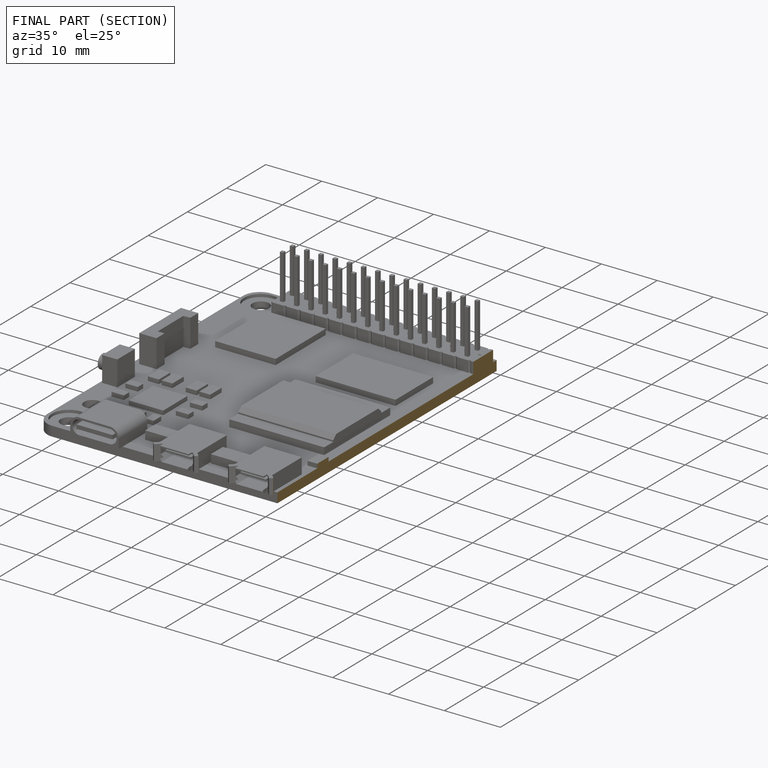
[diagram: finished part — half-section view (interior)]
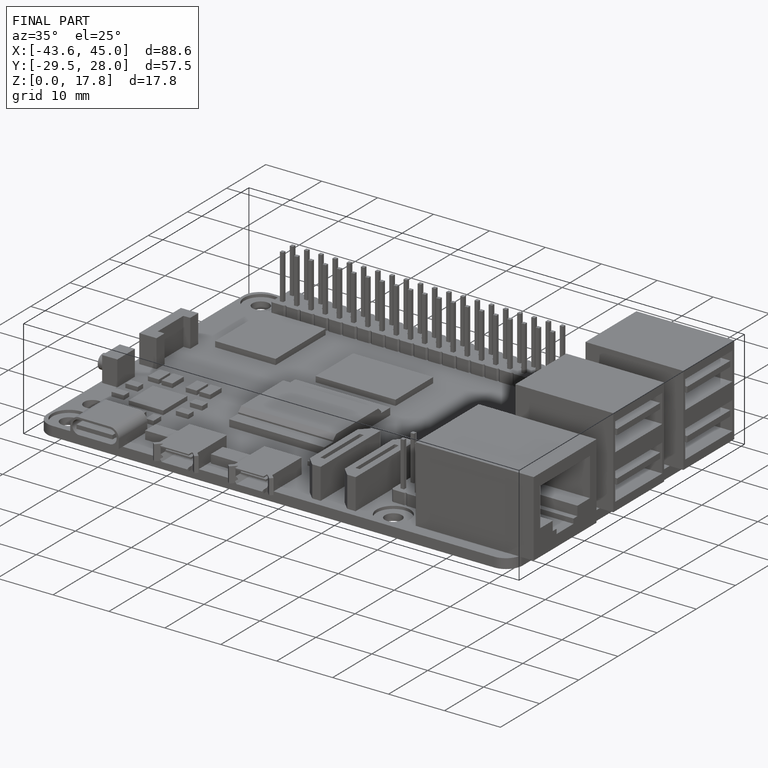
[diagram: finished part — iso view with bounding-box wireframe]
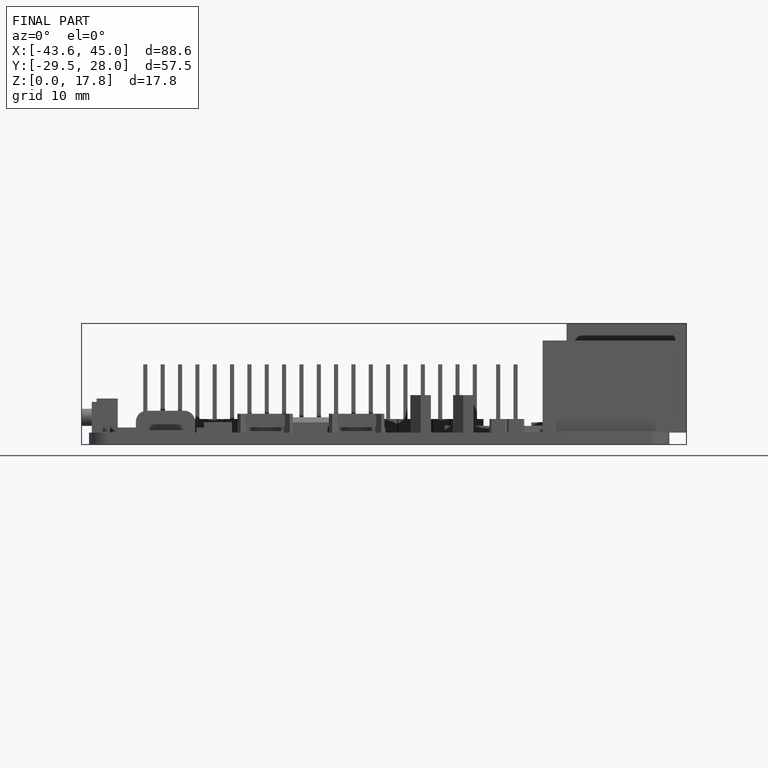
[diagram: finished part — front view with bounding-box wireframe]
